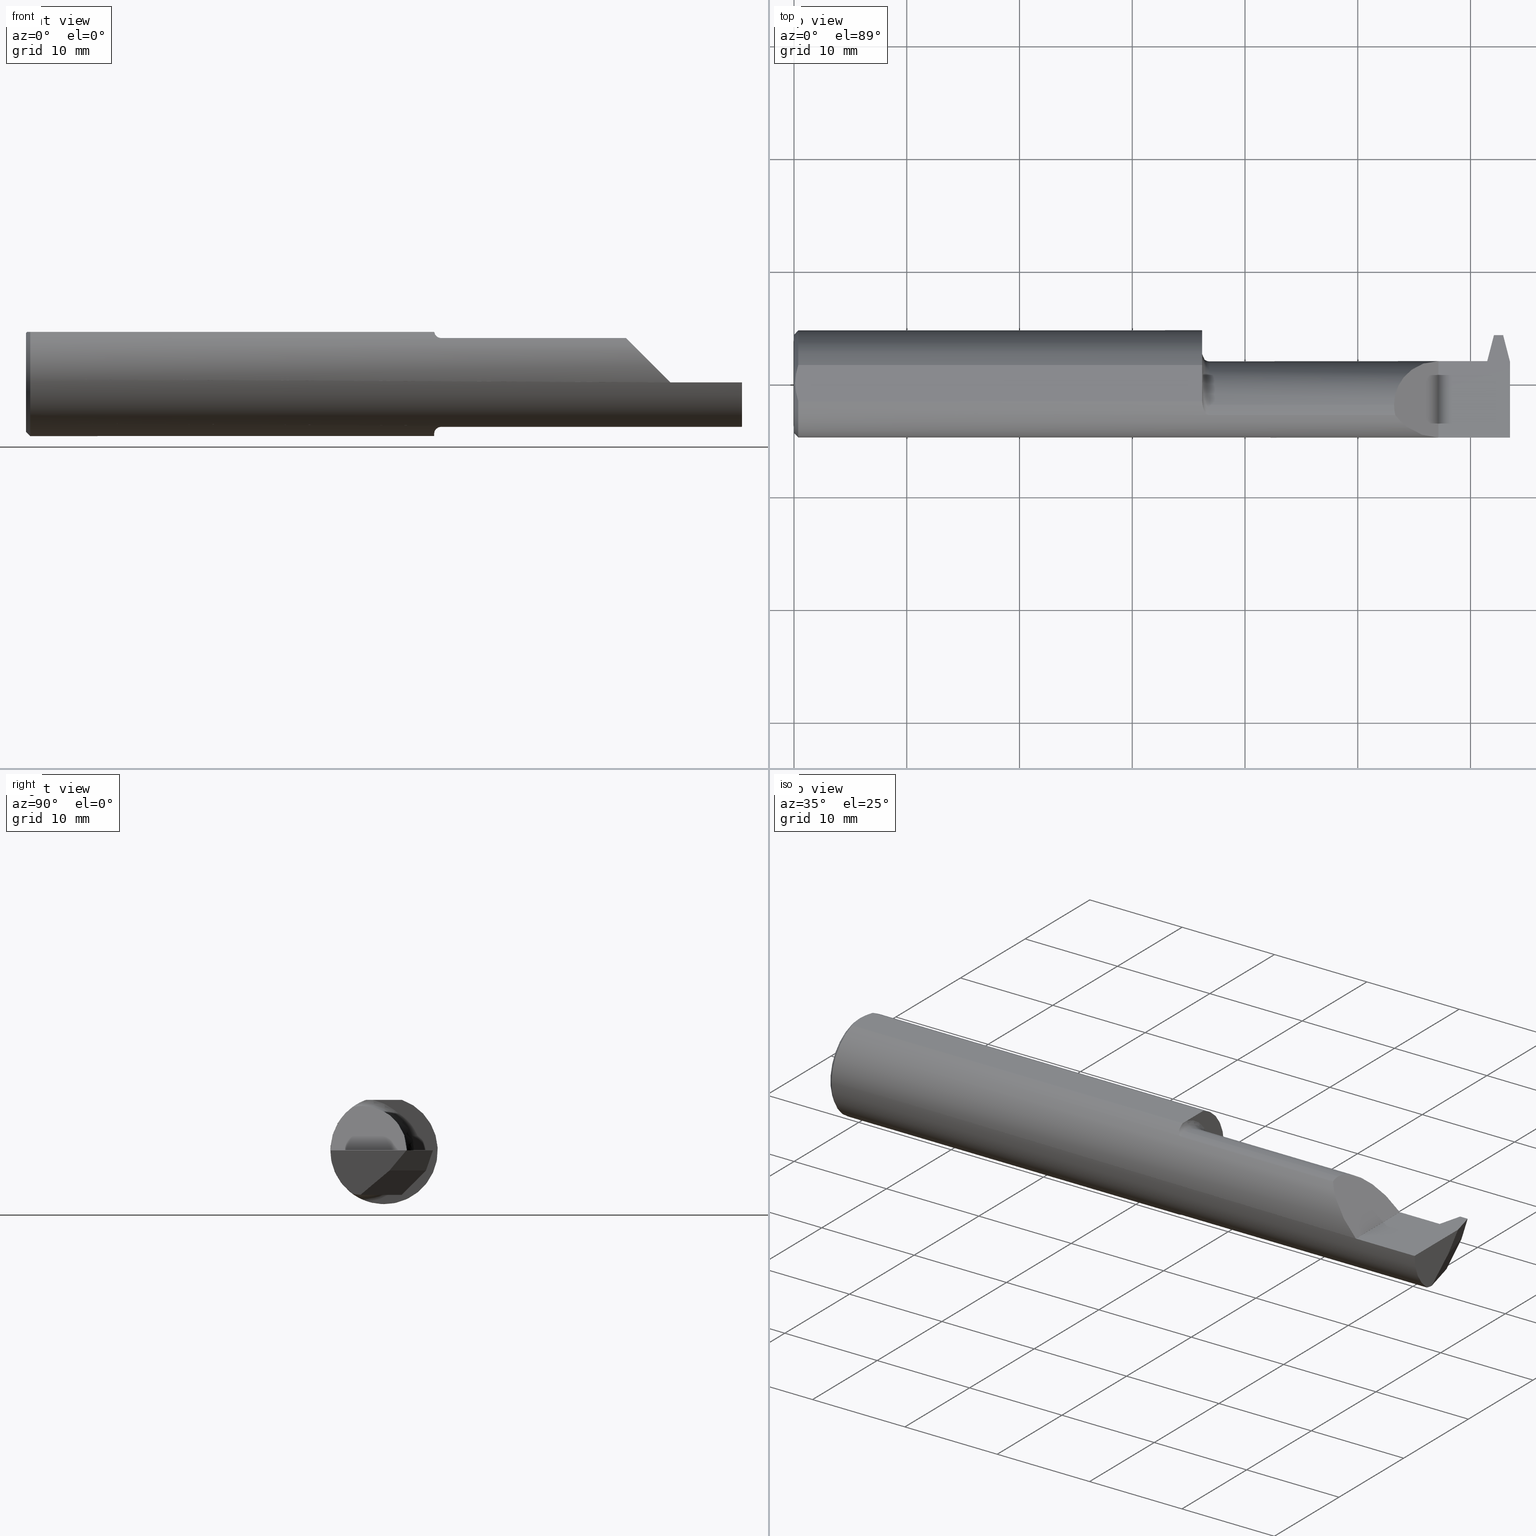
[diagram: canonical four-view strip — front | top / right | iso, engineering-drawing reading convention]
A machine part, canonical four-view strip (front | top / right | iso — engineering-drawing reading convention). The complete STEP part file that produces these views, byte-faithful:
ISO-10303-21;
HEADER;
FILE_DESCRIPTION (( 'STEP AP203' ),
    '1' );
FILE_NAME ('231027-FAT3601000-10.STEP',
    '2024-05-23T22:16:48',
    ( '' ),
    ( '' ),
    'SwSTEP 2.0',
    'SolidWorks 2022',
    '' );
FILE_SCHEMA (( 'CONFIG_CONTROL_DESIGN' ));
ENDSEC;

DATA;
#1 = EDGE_CURVE ( 'NONE', #154, #468, #128, .T. ) ;
#2 = EDGE_CURVE ( 'NONE', #398, #850, #961, .T. ) ;
#3 = VERTEX_POINT ( 'NONE', #661 ) ;
#4 = CARTESIAN_POINT ( 'NONE',  ( 2.416847974081296702, -0.07535000000000005582, 0.000000000000000000 ) ) ;
#5 = CARTESIAN_POINT ( 'NONE',  ( 2.475314547023544254, 0.1733004499999999115, 0.000000000000000000 ) ) ;
#6 = ORIENTED_EDGE ( 'NONE', *, *, #817, .F. ) ;
#7 = ORIENTED_EDGE ( 'NONE', *, *, #13, .T. ) ;
#8 = ADVANCED_FACE ( 'NONE', ( #949 ), #673, .F. ) ;
#9 = CARTESIAN_POINT ( 'NONE',  ( 2.410465799823614752, 0.07964999999999992919, 0.000000000000000000 ) ) ;
#10 = EDGE_CURVE ( 'NONE', #386, #543, #643, .T. ) ;
#11 = CARTESIAN_POINT ( 'NONE',  ( 1.447840824787754999, -0.1111655275381552566, 0.1508053314281813939 ) ) ;
#12 = CARTESIAN_POINT ( 'NONE',  ( 1.425000000000000266, 0.06325108694718213631, 0.1763499999999999790 ) ) ;
#13 = EDGE_CURVE ( 'NONE', #883, #74, #133, .T. ) ;
#14 = EDGE_LOOP ( 'NONE', ( #103, #212 ) ) ;
#15 = EDGE_LOOP ( 'NONE', ( #478, #164, #891, #99, #630, #54, #670, #855, #622, #92, #739, #633, #674, #884, #693 ) ) ;
#16 = CARTESIAN_POINT ( 'NONE',  ( 1.450000000000000178, -0.07535000000000005582, 0.000000000000000000 ) ) ;
#17 = VECTOR ( 'NONE', #569, 39.37007874015748143 ) ;
#18 = VERTEX_POINT ( 'NONE', #585 ) ;
#19 = VECTOR ( 'NONE', #553, 39.37007874015748854 ) ;
#20 = FACE_OUTER_BOUND ( 'NONE', #91, .T. ) ;
#21 = ORIENTED_EDGE ( 'NONE', *, *, #466, .T. ) ;
#22 = VECTOR ( 'NONE', #897, 39.37007874015748143 ) ;
#23 = DIRECTION ( 'NONE',  ( 0.000000000000000000, 0.000000000000000000, -1.000000000000000000 ) ) ;
#24 = DIRECTION ( 'NONE',  ( 0.000000000000000000, 0.000000000000000000, -1.000000000000000000 ) ) ;
#25 = VECTOR ( 'NONE', #313, 39.37007874015748143 ) ;
#26 = CARTESIAN_POINT ( 'NONE',  ( 2.459999999999999964, 0.1738055255122913922, -0.06999999999999920175 ) ) ;
#27 = CIRCLE ( 'NONE', #593, 0.1549999999999999989 ) ;
#28 = ORIENTED_EDGE ( 'NONE', *, *, #10, .F. ) ;
#29 = PERSON_AND_ORGANIZATION ( #221, #629 ) ;
#30 = DIRECTION ( 'NONE',  ( 0.000000000000000000, 0.000000000000000000, -1.000000000000000000 ) ) ;
#31 = DIRECTION ( 'NONE',  ( -1.000000000000000000, -0.000000000000000000, -0.000000000000000000 ) ) ;
#32 = CARTESIAN_POINT ( 'NONE',  ( 2.443999999999999506, 0.1706500000000004402, 0.000000000000000000 ) ) ;
#33 = SHAPE_DEFINITION_REPRESENTATION ( #964, #272 ) ;
#34 = EDGE_CURVE ( 'NONE', #846, #905, #740, .T. ) ;
#35 = B_SPLINE_CURVE_WITH_KNOTS ( 'NONE', 3,
 ( #342, #273, #401, #729, #41, #187, #494, #346, #116, #644, #941, #873 ),
 .UNSPECIFIED., .F., .F.,
 ( 4, 2, 2, 2, 2, 4 ),
 ( 0.0005353161947638540065, 0.0008532056447682662310, 0.001171095094772678456, 0.001488984544777090680, 0.001647929269779296792, 0.001806873994781502905 ),
 .UNSPECIFIED. ) ;
#36 = CARTESIAN_POINT ( 'NONE',  ( 1.425000000000000266, 0.000000000000000000, 0.000000000000000000 ) ) ;
#37 = CARTESIAN_POINT ( 'NONE',  ( 2.500000000000000000, -0.07534999999999998643, -0.1549999999999999156 ) ) ;
#38 = EDGE_CURVE ( 'NONE', #256, #850, #234, .T. ) ;
#39 = FACE_OUTER_BOUND ( 'NONE', #15, .T. ) ;
#40 = CALENDAR_DATE ( 2024, 23, 5 ) ;
#41 = CARTESIAN_POINT ( 'NONE',  ( 1.431244079504313538, -0.09361870253556393850, -0.1623293170049111833 ) ) ;
#42 = CARTESIAN_POINT ( 'NONE',  ( 2.419999999999999929, -0.02721703491516649920, -0.1473370885830929677 ) ) ;
#43 = VECTOR ( 'NONE', #454, 39.37007874015748143 ) ;
#44 = PERSON_AND_ORGANIZATION ( #221, #629 ) ;
#45 = CARTESIAN_POINT ( 'NONE',  ( 2.420465799823614539, 0.07964999999999992919, 0.000000000000000000 ) ) ;
#46 = DIRECTION ( 'NONE',  ( -0.2503800040544423844, 0.9681476403781074103, -5.540024868260867537E-16 ) ) ;
#47 = ORIENTED_EDGE ( 'NONE', *, *, #646, .F. ) ;
#48 = EDGE_LOOP ( 'NONE', ( #842, #612 ) ) ;
#49 = APPROVAL_DATE_TIME ( #130, #548 ) ;
#50 = CARTESIAN_POINT ( 'NONE',  ( 0.01500000000000079568, 0.000000000000000000, 0.000000000000000000 ) ) ;
#51 = AXIS2_PLACEMENT_3D ( 'NONE', #813, #166, #73 ) ;
#52 = FACE_OUTER_BOUND ( 'NONE', #183, .T. ) ;
#53 = ORIENTED_EDGE ( 'NONE', *, *, #118, .F. ) ;
#54 = ORIENTED_EDGE ( 'NONE', *, *, #215, .F. ) ;
#55 = ORIENTED_EDGE ( 'NONE', *, *, #900, .T. ) ;
#56 = EDGE_CURVE ( 'NONE', #393, #908, #337, .T. ) ;
#57 = CARTESIAN_POINT ( 'NONE',  ( 2.250000000000000000, 0.000000000000000000, 0.000000000000000000 ) ) ;
#58 = CARTESIAN_POINT ( 'NONE',  ( 2.420465799823614539, 0.07964999999999992919, 0.000000000000000000 ) ) ;
#59 = ORIENTED_EDGE ( 'NONE', *, *, #34, .T. ) ;
#60 = DIRECTION ( 'NONE',  ( -0.1200238624775790408, 0.3232146245633335524, 0.9386834284807347162 ) ) ;
#61 = CARTESIAN_POINT ( 'NONE',  ( 2.500000000000000000, -0.03634933712599664607, -0.1549999999999999434 ) ) ;
#62 = ORIENTED_EDGE ( 'NONE', *, *, #926, .T. ) ;
#63 = MANIFOLD_SOLID_BREP ( 'Cut-Sweep1', #717 ) ;
#64 = CIRCLE ( 'NONE', #199, 0.1873499999999999888 ) ;
#65 = LINE ( 'NONE', #554, #455 ) ;
#66 = FACE_OUTER_BOUND ( 'NONE', #248, .T. ) ;
#67 = CARTESIAN_POINT ( 'NONE',  ( 2.095349999999999380, -0.07535000000000005582, 0.1549999999999999989 ) ) ;
#68 = AXIS2_PLACEMENT_3D ( 'NONE', #189, #935, #822 ) ;
#69 = CIRCLE ( 'NONE', #286, 0.1873499999999999888 ) ;
#70 = AXIS2_PLACEMENT_3D ( 'NONE', #840, #848, #982 ) ;
#71 = CARTESIAN_POINT ( 'NONE',  ( 2.399999999999999911, 0.2165470670697226818, 0.000000000000000000 ) ) ;
#72 = CC_DESIGN_PERSON_AND_ORGANIZATION_ASSIGNMENT ( #649, #107, ( #606 ) ) ;
#73 = DIRECTION ( 'NONE',  ( 0.000000000000000000, 0.000000000000000000, -1.000000000000000000 ) ) ;
#74 = VERTEX_POINT ( 'NONE', #314 ) ;
#75 = DIMENSIONAL_EXPONENTS ( 1.000000000000000000, 0.000000000000000000, 0.000000000000000000, 0.000000000000000000, 0.000000000000000000, 0.000000000000000000, 0.000000000000000000 ) ;
#76 = SECURITY_CLASSIFICATION ( '', '', #796 ) ;
#77 = DIRECTION ( 'NONE',  ( 0.000000000000000000, -0.7071067811865515695, 0.7071067811865434649 ) ) ;
#78 = FACE_OUTER_BOUND ( 'NONE', #81, .T. ) ;
#79 = EDGE_CURVE ( 'NONE', #955, #260, #609, .T. ) ;
#80 = EDGE_CURVE ( 'NONE', #179, #375, #160, .T. ) ;
#81 = EDGE_LOOP ( 'NONE', ( #586, #289, #549, #567 ) ) ;
#82 = CARTESIAN_POINT ( 'NONE',  ( 0.004000000000000698309, 2.159664630174422375E-17, 0.1763499999999999790 ) ) ;
#83 = CARTESIAN_POINT ( 'NONE',  ( 2.451219831960825157, 0.1039189971471759233, -0.1938009043633889261 ) ) ;
#84 = ORIENTED_EDGE ( 'NONE', *, *, #580, .F. ) ;
#85 = EDGE_CURVE ( 'NONE', #370, #316, #27, .T. ) ;
#86 = APPROVAL ( #879, 'UNSPECIFIED' ) ;
#87 = VERTEX_POINT ( 'NONE', #830 ) ;
#88 = ADVANCED_FACE ( 'NONE', ( #683 ), #618, .T. ) ;
#89 = DIRECTION ( 'NONE',  ( 0.000000000000000000, 0.000000000000000000, -1.000000000000000000 ) ) ;
#90 = DIRECTION ( 'NONE',  ( 1.000000000000000000, 0.000000000000000000, 0.000000000000000000 ) ) ;
#91 = EDGE_LOOP ( 'NONE', ( #972, #852, #174, #442, #518, #705 ) ) ;
#92 = ORIENTED_EDGE ( 'NONE', *, *, #195, .T. ) ;
#93 = PERSON_AND_ORGANIZATION_ROLE ( 'design_owner' ) ;
#94 = CC_DESIGN_APPROVAL ( #86, ( #76 ) ) ;
#95 = CARTESIAN_POINT ( 'NONE',  ( 2.420465799823614539, 0.07964999999999992919, 0.000000000000000000 ) ) ;
#96 = ORIENTED_EDGE ( 'NONE', *, *, #792, .F. ) ;
#97 = CARTESIAN_POINT ( 'NONE',  ( 2.410128569999999470, 0.1055363691085695749, -0.1891037151198635968 ) ) ;
#98 =( BOUNDED_CURVE ( )  B_SPLINE_CURVE ( 3, ( #695, #977, #843, #906 ),
 .UNSPECIFIED., .F., .T. ) 
 B_SPLINE_CURVE_WITH_KNOTS ( ( 4, 4 ),
 ( 4.714647046819741227, 6.283185307179586232 ),
 .UNSPECIFIED. ) 
 CURVE ( )  GEOMETRIC_REPRESENTATION_ITEM ( )  RATIONAL_B_SPLINE_CURVE ( ( 1.000000000000000000, 0.8052697849207437475, 0.8052697849207437475, 1.000000000000000000 ) ) 
 REPRESENTATION_ITEM ( '' )  );
#99 = ORIENTED_EDGE ( 'NONE', *, *, #539, .T. ) ;
#100 = DIRECTION ( 'NONE',  ( -1.000000000000000000, -0.000000000000000000, -0.000000000000000000 ) ) ;
#101 = ADVANCED_FACE ( 'NONE', ( #66 ), #470, .T. ) ;
#102 = FACE_OUTER_BOUND ( 'NONE', #288, .T. ) ;
#103 = ORIENTED_EDGE ( 'NONE', *, *, #1, .T. ) ;
#104 = PLANE ( 'NONE',  #68 ) ;
#105 = ORIENTED_EDGE ( 'NONE', *, *, #475, .F. ) ;
#106 = CIRCLE ( 'NONE', #410, 0.1549999999999999989 ) ;
#107 = PERSON_AND_ORGANIZATION_ROLE ( 'creator' ) ;
#108 = DIRECTION ( 'NONE',  ( -1.000000000000000000, -0.000000000000000000, -0.000000000000000000 ) ) ;
#109 = B_SPLINE_CURVE_WITH_KNOTS ( 'NONE', 3,
 ( #978, #157, #238, #767 ),
 .UNSPECIFIED., .F., .F.,
 ( 4, 4 ),
 ( 0.000000000000000000, 0.0005353161947638540065 ),
 .UNSPECIFIED. ) ;
#110 = CARTESIAN_POINT ( 'NONE',  ( 2.498238283139456506, -0.07535000000000000031, -0.1549999999999999156 ) ) ;
#111 = AXIS2_PLACEMENT_3D ( 'NONE', #827, #274, #296 ) ;
#112 = EDGE_LOOP ( 'NONE', ( #315, #462, #820, #389, #362, #863, #356, #532 ) ) ;
#113 = CYLINDRICAL_SURFACE ( 'NONE', #332, 0.1873499999999999888 ) ;
#114 = PERSON_AND_ORGANIZATION ( #221, #629 ) ;
#115 = UNCERTAINTY_MEASURE_WITH_UNIT (LENGTH_MEASURE( 1.000000000000000082E-05 ), #321, 'distance_accuracy_value', 'NONE');
#116 = CARTESIAN_POINT ( 'NONE',  ( 1.442175898121774713, -0.1087238381091982370, -0.1525793326322721077 ) ) ;
#117 = DIRECTION ( 'NONE',  ( 0.000000000000000000, 0.000000000000000000, -1.000000000000000000 ) ) ;
#118 = EDGE_CURVE ( 'NONE', #439, #467, #542, .T. ) ;
#119 = EDGE_CURVE ( 'NONE', #955, #355, #911, .T. ) ;
#120 = DIRECTION ( 'NONE',  ( 0.000000000000000000, 0.000000000000000000, -1.000000000000000000 ) ) ;
#121 = CARTESIAN_POINT ( 'NONE',  ( 1.450000000000000178, -0.1111655275381552427, 0.1508053314281814494 ) ) ;
#122 = LINE ( 'NONE', #499, #931 ) ;
#123 = CONICAL_SURFACE ( 'NONE', #708, 0.1873499999999999888, 0.7853981633974437271 ) ;
#124 = ADVANCED_FACE ( 'NONE', ( #307 ), #448, .F. ) ;
#125 = APPROVAL_ROLE ( '' ) ;
#126 = CARTESIAN_POINT ( 'NONE',  ( 1.425000000000000266, -0.02721703491516655818, -0.1473370885830930233 ) ) ;
#127 = AXIS2_PLACEMENT_3D ( 'NONE', #750, #894, #360 ) ;
#128 = LINE ( 'NONE', #369, #841 ) ;
#129 = CIRCLE ( 'NONE', #685, 0.1873499999999999888 ) ;
#130 = DATE_AND_TIME ( #40, #621 ) ;
#131 = CARTESIAN_POINT ( 'NONE',  ( 2.416847974081296702, 0.06494971824451248321, -0.06999999999999920175 ) ) ;
#132 = CARTESIAN_POINT ( 'NONE',  ( 2.431847974081296826, 0.06494971824451248321, -0.06999999999999920175 ) ) ;
#133 = LINE ( 'NONE', #217, #671 ) ;
#134 = ORIENTED_EDGE ( 'NONE', *, *, #682, .F. ) ;
#135 = DIRECTION ( 'NONE',  ( 0.000000000000000000, 0.6427876096865379196, -0.7660444431189792347 ) ) ;
#136 = CARTESIAN_POINT ( 'NONE',  ( 1.425439896557285868, -0.06737885671737320337, 0.1748695014197203801 ) ) ;
#137 = ORIENTED_EDGE ( 'NONE', *, *, #215, .T. ) ;
#138 = ORIENTED_EDGE ( 'NONE', *, *, #56, .F. ) ;
#139 = CARTESIAN_POINT ( 'NONE',  ( 2.500000000000000000, 0.000000000000000000, 0.000000000000000000 ) ) ;
#140 = ORIENTED_EDGE ( 'NONE', *, *, #193, .F. ) ;
#141 = ORIENTED_EDGE ( 'NONE', *, *, #926, .F. ) ;
#142 = DIRECTION ( 'NONE',  ( -1.000000000000000000, -0.000000000000000000, -0.000000000000000000 ) ) ;
#143 = EDGE_LOOP ( 'NONE', ( #391, #59, #642 ) ) ;
#144 = DIRECTION ( 'NONE',  ( -0.000000000000000000, 0.000000000000000000, -1.000000000000000000 ) ) ;
#145 = DIRECTION ( 'NONE',  ( 0.000000000000000000, 0.000000000000000000, 1.000000000000000000 ) ) ;
#146 = DIRECTION ( 'NONE',  ( 0.000000000000000000, 0.000000000000000000, -1.000000000000000000 ) ) ;
#147 = TOROIDAL_SURFACE ( 'NONE', #326, 0.1799999999999999933, 0.02500000000000000139 ) ;
#148 = AXIS2_PLACEMENT_3D ( 'NONE', #937, #757, #257 ) ;
#149 = LINE ( 'NONE', #769, #25 ) ;
#150 = CARTESIAN_POINT ( 'NONE',  ( 2.419999999999999929, -0.07535000000000005582, 0.000000000000000000 ) ) ;
#151 = VECTOR ( 'NONE', #60, 39.37007874015748854 ) ;
#152 = EDGE_CURVE ( 'NONE', #3, #543, #857, .T. ) ;
#153 = CIRCLE ( 'NONE', #808, 0.02500000000000000486 ) ;
#154 = VERTEX_POINT ( 'NONE', #225 ) ;
#155 = EDGE_CURVE ( 'NONE', #467, #179, #311, .T. ) ;
#156 = CARTESIAN_POINT ( 'NONE',  ( 1.431253303781169661, -0.09363708362384966233, 0.1623181733163006346 ) ) ;
#157 = CARTESIAN_POINT ( 'NONE',  ( 1.425000000000000266, -0.06239895713696063523, -0.1767970804181337729 ) ) ;
#158 = ORIENTED_EDGE ( 'NONE', *, *, #438, .F. ) ;
#159 = DIRECTION ( 'NONE',  ( 0.000000000000000000, 1.000000000000000000, -1.224646799147353207E-16 ) ) ;
#160 = LINE ( 'NONE', #61, #43 ) ;
#161 = EDGE_CURVE ( 'NONE', #162, #543, #761, .T. ) ;
#162 = VERTEX_POINT ( 'NONE', #919 ) ;
#163 = EDGE_CURVE ( 'NONE', #905, #908, #109, .T. ) ;
#164 = ORIENTED_EDGE ( 'NONE', *, *, #533, .F. ) ;
#165 = CARTESIAN_POINT ( 'NONE',  ( 2.431847974081296826, 0.06494971824451248321, -0.06999999999999920175 ) ) ;
#166 = DIRECTION ( 'NONE',  ( -1.000000000000000000, -0.000000000000000000, -0.000000000000000000 ) ) ;
#167 = ORIENTED_EDGE ( 'NONE', *, *, #539, .F. ) ;
#168 = ORIENTED_EDGE ( 'NONE', *, *, #339, .T. ) ;
#169 = DIRECTION ( 'NONE',  ( 1.000000000000000000, 0.000000000000000000, 0.000000000000000000 ) ) ;
#170 = DIRECTION ( 'NONE',  ( 0.000000000000000000, 0.000000000000000000, -1.000000000000000000 ) ) ;
#171 = AXIS2_PLACEMENT_3D ( 'NONE', #379, #975, #230 ) ;
#172 = ORIENTED_EDGE ( 'NONE', *, *, #892, .F. ) ;
#173 = CARTESIAN_POINT ( 'NONE',  ( 0.000000000000000000, 0.000000000000000000, 0.000000000000000000 ) ) ;
#174 = ORIENTED_EDGE ( 'NONE', *, *, #188, .T. ) ;
#175 = CARTESIAN_POINT ( 'NONE',  ( 0.01500000000000079568, 0.000000000000000000, 0.000000000000000000 ) ) ;
#176 = PLANE ( 'NONE',  #381 ) ;
#177 = ORIENTED_EDGE ( 'NONE', *, *, #443, .T. ) ;
#178 = CARTESIAN_POINT ( 'NONE',  ( 2.099544668571818207, -0.1111655275381547570, 0.1508053314281816715 ) ) ;
#179 = VERTEX_POINT ( 'NONE', #461 ) ;
#180 = CARTESIAN_POINT ( 'NONE',  ( 1.425000000000000266, -0.05559153948241538773, -0.1789122780526117285 ) ) ;
#181 = DIRECTION ( 'NONE',  ( 0.000000000000000000, -0.9786527043120508695, 0.2055210070593990190 ) ) ;
#182 = CARTESIAN_POINT ( 'NONE',  ( 2.419999999999999929, -0.07534999999999998643, -0.1549999999999999156 ) ) ;
#183 = EDGE_LOOP ( 'NONE', ( #138, #656, #441 ) ) ;
#184 = CARTESIAN_POINT ( 'NONE',  ( 1.425000000000000266, -0.04727406520530673395, 0.1763499999999999790 ) ) ;
#185 = COORDINATED_UNIVERSAL_TIME_OFFSET ( 8, 0, .BEHIND. ) ;
#186 = ADVANCED_FACE ( 'NONE', ( #78 ), #388, .F. ) ;
#187 = CARTESIAN_POINT ( 'NONE',  ( 1.434565425567610131, -0.1003007981862104464, -0.1582877711856871539 ) ) ;
#188 = EDGE_CURVE ( 'NONE', #316, #375, #299, .T. ) ;
#189 = CARTESIAN_POINT ( 'NONE',  ( 2.500000000000000000, 0.1052379327999176384, -0.1550000000000000266 ) ) ;
#190 = CARTESIAN_POINT ( 'NONE',  ( 2.500000000000000000, 0.000000000000000000, 0.000000000000000000 ) ) ;
#191 = PLANE ( 'NONE',  #877 ) ;
#192 = LOCAL_TIME ( 15, 16, 48.00000000000000000, #653 ) ;
#193 = EDGE_CURVE ( 'NONE', #355, #439, #592, .T. ) ;
#194 = DIRECTION ( 'NONE',  ( -1.552304856221516553E-14, -0.9455185755993168462, 0.3255681544571566999 ) ) ;
#195 = EDGE_CURVE ( 'NONE', #915, #481, #129, .T. ) ;
#196 = DIRECTION ( 'NONE',  ( 0.000000000000000000, 0.000000000000000000, -1.000000000000000000 ) ) ;
#197 = CIRCLE ( 'NONE', #753, 0.1873499999999999888 ) ;
#198 = CARTESIAN_POINT ( 'NONE',  ( 2.498811112660294320, -0.07756496740936762169, -0.1550000000000000266 ) ) ;
#199 = AXIS2_PLACEMENT_3D ( 'NONE', #50, #733, #196 ) ;
#200 = AXIS2_PLACEMENT_3D ( 'NONE', #173, #490, #479 ) ;
#201 = PERSON_AND_ORGANIZATION_ROLE ( 'classification_officer' ) ;
#202 = CARTESIAN_POINT ( 'NONE',  ( 2.470434268414138046, 0.2148006194178429529, -0.001746447651879760822 ) ) ;
#203 = AXIS2_PLACEMENT_3D ( 'NONE', #165, #463, #224 ) ;
#204 = CARTESIAN_POINT ( 'NONE',  ( 0.008079618022130599653, 0.04275288484297749825, 0.1763499999999999790 ) ) ;
#205 = ORIENTED_EDGE ( 'NONE', *, *, #823, .T. ) ;
#206 = ORIENTED_EDGE ( 'NONE', *, *, #367, .T. ) ;
#207 = AXIS2_PLACEMENT_3D ( 'NONE', #373, #536, #145 ) ;
#208 = APPROVAL_STATUS ( 'not_yet_approved' ) ;
#209 = CARTESIAN_POINT ( 'NONE',  ( 1.426478687487613639, -0.07534999999999991704, 0.1715295892841814940 ) ) ;
#210 = CARTESIAN_POINT ( 'NONE',  ( 2.189466948591779705, -0.1872365873764759991, 0.06088305140821962530 ) ) ;
#211 = ORIENTED_EDGE ( 'NONE', *, *, #152, .T. ) ;
#212 = ORIENTED_EDGE ( 'NONE', *, *, #611, .F. ) ;
#213 = LINE ( 'NONE', #965, #301 ) ;
#214 = ORIENTED_EDGE ( 'NONE', *, *, #366, .T. ) ;
#215 = EDGE_CURVE ( 'NONE', #702, #319, #872, .T. ) ;
#216 = LINE ( 'NONE', #734, #510 ) ;
#217 = CARTESIAN_POINT ( 'NONE',  ( 2.419999999999999929, 0.1080444690466985241, -0.03383921049620826349 ) ) ;
#218 = CARTESIAN_POINT ( 'NONE',  ( 0.000000000000000000, 0.000000000000000000, -0.1723499999999993371 ) ) ;
#219 = DIRECTION ( 'NONE',  ( -1.000000000000000000, 1.641749719446377136E-14, 0.000000000000000000 ) ) ;
#220 = ORIENTED_EDGE ( 'NONE', *, *, #347, .F. ) ;
#221 = PERSON ( 'UNSPECIFIED', 'UNSPECIFIED', 'UNSPECIFIED', ('UNSPECIFIED'), ('UNSPECIFIED'), ('UNSPECIFIED') ) ;
#222 = ADVANCED_FACE ( 'NONE', ( #39 ), #113, .T. ) ;
#223 = EDGE_CURVE ( 'NONE', #883, #256, #925, .T. ) ;
#224 = DIRECTION ( 'NONE',  ( -0.2945363905204703703, 0.000000000000000000, 0.9556402642517595192 ) ) ;
#225 = CARTESIAN_POINT ( 'NONE',  ( 2.416847974081296702, 0.06139050547018883031, -0.07298653412621564085 ) ) ;
#226 = ORIENTED_EDGE ( 'NONE', *, *, #161, .T. ) ;
#227 = AXIS2_PLACEMENT_3D ( 'NONE', #131, #135, #426 ) ;
#228 = ORIENTED_EDGE ( 'NONE', *, *, #262, .T. ) ;
#229 = DIRECTION ( 'NONE',  ( 0.2503800040544299499, 0.9681476403781106299, -0.000000000000000000 ) ) ;
#230 = DIRECTION ( 'NONE',  ( -0.000000000000000000, 0.000000000000000000, 1.000000000000000000 ) ) ;
#231 = AXIS2_PLACEMENT_3D ( 'NONE', #97, #194, #423 ) ;
#232 = ORIENTED_EDGE ( 'NONE', *, *, #817, .T. ) ;
#233 = CARTESIAN_POINT ( 'NONE',  ( 1.450000000000000178, -0.07535000000000005582, 0.1549999999999999989 ) ) ;
#234 = LINE ( 'NONE', #318, #457 ) ;
#235 = ORIENTED_EDGE ( 'NONE', *, *, #293, .F. ) ;
#236 = EDGE_LOOP ( 'NONE', ( #158, #744, #779, #253, #206, #491 ) ) ;
#237 = LINE ( 'NONE', #700, #558 ) ;
#238 = CARTESIAN_POINT ( 'NONE',  ( 1.425471628390130308, -0.06898398245409141649, -0.1743260713610383095 ) ) ;
#239 = VERTEX_POINT ( 'NONE', #12 ) ;
#240 = EDGE_LOOP ( 'NONE', ( #351, #666, #168, #226, #28 ) ) ;
#241 = CARTESIAN_POINT ( 'NONE',  ( 2.500000000000000000, -0.06325108694718213631, 0.1763499999999999790 ) ) ;
#242 = AXIS2_PLACEMENT_3D ( 'NONE', #250, #922, #638 ) ;
#243 = DIRECTION ( 'NONE',  ( 0.000000000000000000, -0.7660444431189792347, -0.6427876096865379196 ) ) ;
#244 = DIRECTION ( 'NONE',  ( -1.000000000000000000, -0.000000000000000000, -0.000000000000000000 ) ) ;
#245 = ORIENTED_EDGE ( 'NONE', *, *, #13, .F. ) ;
#246 = FACE_OUTER_BOUND ( 'NONE', #912, .T. ) ;
#247 = AXIS2_PLACEMENT_3D ( 'NONE', #944, #266, #574 ) ;
#248 = EDGE_LOOP ( 'NONE', ( #934, #7, #6 ) ) ;
#249 = AXIS2_PLACEMENT_3D ( 'NONE', #541, #408, #498 ) ;
#250 = CARTESIAN_POINT ( 'NONE',  ( 2.419999999999999929, 0.07964999999999992919, 0.000000000000000000 ) ) ;
#251 = FACE_OUTER_BOUND ( 'NONE', #14, .T. ) ;
#252 = VECTOR ( 'NONE', #90, 39.37007874015748143 ) ;
#253 = ORIENTED_EDGE ( 'NONE', *, *, #152, .F. ) ;
#254 = PLANE ( 'NONE',  #231 ) ;
#255 = APPROVAL ( #208, 'UNSPECIFIED' ) ;
#256 = VERTEX_POINT ( 'NONE', #323 ) ;
#257 = DIRECTION ( 'NONE',  ( 0.000000000000000000, 0.000000000000000000, -1.000000000000000000 ) ) ;
#258 = DIRECTION ( 'NONE',  ( -1.000000000000000000, -0.000000000000000000, -0.000000000000000000 ) ) ;
#259 = DIRECTION ( 'NONE',  ( 0.000000000000000000, -0.7660444431189792347, -0.6427876096865379196 ) ) ;
#261 = EDGE_CURVE ( 'NONE', #428, #722, #534, .T. ) ;
#260 = VERTEX_POINT ( 'NONE', #32 ) ;
#262 = EDGE_CURVE ( 'NONE', #411, #846, #477, .T. ) ;
#263 = DATE_AND_TIME ( #809, #497 ) ;
#264 = DIRECTION ( 'NONE',  ( 0.000000000000000000, 0.000000000000000000, 1.000000000000000000 ) ) ;
#265 = CARTESIAN_POINT ( 'NONE',  ( 2.410465799823614752, 0.07964999999999992919, 0.000000000000000000 ) ) ;
#266 = DIRECTION ( 'NONE',  ( 1.000000000000000000, 0.000000000000000000, 0.000000000000000000 ) ) ;
#267 = APPROVAL_ROLE ( '' ) ;
#268 = FACE_OUTER_BOUND ( 'NONE', #748, .T. ) ;
#269 = EDGE_CURVE ( 'NONE', #239, #846, #416, .T. ) ;
#270 = LINE ( 'NONE', #26, #668 ) ;
#271 = ADVANCED_FACE ( 'NONE', ( #652 ), #344, .T. ) ;
#272 = ADVANCED_BREP_SHAPE_REPRESENTATION ( '231027-FAT3601000-10', ( #63, #503 ), #804 ) ;
#273 = CARTESIAN_POINT ( 'NONE',  ( 1.427076714346777742, -0.07913036352372353199, -0.1698689405721950929 ) ) ;
#274 = DIRECTION ( 'NONE',  ( -0.000000000000000000, 0.000000000000000000, -1.000000000000000000 ) ) ;
#275 = DATE_AND_TIME ( #430, #192 ) ;
#276 = CARTESIAN_POINT ( 'NONE',  ( 1.425000000000000266, 0.06139050547018883031, -0.07298653412621564085 ) ) ;
#277 =( BOUNDED_CURVE ( )  B_SPLINE_CURVE ( 3, ( #743, #210, #516, #440 ),
 .UNSPECIFIED., .F., .T. ) 
 B_SPLINE_CURVE_WITH_KNOTS ( ( 4, 4 ),
 ( 4.714257142666966161, 5.647961724597865718 ),
 .UNSPECIFIED. ) 
 CURVE ( )  GEOMETRIC_REPRESENTATION_ITEM ( )  RATIONAL_B_SPLINE_CURVE ( ( 1.000000000000000000, 0.9286596154903572486, 0.9286596154903572486, 1.000000000000000000 ) ) 
 REPRESENTATION_ITEM ( '' )  );
#278 = CIRCLE ( 'NONE', #501, 0.1549999999999999989 ) ;
#279 = CARTESIAN_POINT ( 'NONE',  ( 0.01500000000000079568, 0.06325108694718213631, 0.1763499999999999790 ) ) ;
#280 = DIRECTION ( 'NONE',  ( 0.000000000000000000, -0.7660444431189792347, -0.6427876096865379196 ) ) ;
#281 = ORIENTED_EDGE ( 'NONE', *, *, #876, .T. ) ;
#282 = CC_DESIGN_APPROVAL ( #255, ( #606 ) ) ;
#283 = AXIS2_PLACEMENT_3D ( 'NONE', #496, #728, #120 ) ;
#284 = CALENDAR_DATE ( 2024, 23, 5 ) ;
#285 = PLANE ( 'NONE',  #924 ) ;
#286 = AXIS2_PLACEMENT_3D ( 'NONE', #57, #298, #599 ) ;
#287 = DIRECTION ( 'NONE',  ( 0.2503800040544398309, 0.9681476403781081874, 0.000000000000000000 ) ) ;
#288 = EDGE_LOOP ( 'NONE', ( #814, #776, #679, #137 ) ) ;
#289 = ORIENTED_EDGE ( 'NONE', *, *, #119, .F. ) ;
#290 = CC_DESIGN_PERSON_AND_ORGANIZATION_ASSIGNMENT ( #731, #341, ( #950 ) ) ;
#291 = DIRECTION ( 'NONE',  ( -0.000000000000000000, 1.000000000000000000, -0.000000000000000000 ) ) ;
#292 = VERTEX_POINT ( 'NONE', #495 ) ;
#293 = EDGE_CURVE ( 'NONE', #256, #179, #798, .T. ) ;
#294 = DESIGN_CONTEXT ( 'detailed design', #765, 'design' ) ;
#295 = EDGE_CURVE ( 'NONE', #386, #316, #570, .T. ) ;
#296 = DIRECTION ( 'NONE',  ( -1.000000000000000000, 0.000000000000000000, 0.000000000000000000 ) ) ;
#297 = ADVANCED_FACE ( 'NONE', ( #419 ), #640, .T. ) ;
#298 = DIRECTION ( 'NONE',  ( -1.000000000000000000, -0.000000000000000000, -0.000000000000000000 ) ) ;
#299 = LINE ( 'NONE', #600, #637 ) ;
#300 = CARTESIAN_POINT ( 'NONE',  ( 2.250000000000000000, 0.07964999999999992919, -4.469813191451678053E-17 ) ) ;
#301 = VECTOR ( 'NONE', #519, 39.37007874015748143 ) ;
#302 = B_SPLINE_CURVE_WITH_KNOTS ( 'NONE', 3,
 ( #364, #826, #960, #665 ),
 .UNSPECIFIED., .F., .F.,
 ( 4, 4 ),
 ( 0.005496776235116787243, 0.007121625476792169465 ),
 .UNSPECIFIED. ) ;
#303 = EDGE_CURVE ( 'NONE', #969, #398, #122, .T. ) ;
#304 = EDGE_CURVE ( 'NONE', #602, #702, #106, .T. ) ;
#305 = AXIS2_PLACEMENT_3D ( 'NONE', #844, #755, #604 ) ;
#306 = CARTESIAN_POINT ( 'NONE',  ( 1.425000000000000266, -0.07535000000000005582, 0.1549999999999999989 ) ) ;
#307 = FACE_OUTER_BOUND ( 'NONE', #445, .T. ) ;
#308 = LENGTH_MEASURE_WITH_UNIT ( LENGTH_MEASURE( 0.02539999999999999897 ), #699 );
#309 = VERTEX_POINT ( 'NONE', #714 ) ;
#310 = CARTESIAN_POINT ( 'NONE',  ( 1.450000000000000178, -0.07535000000000002807, 0.1799999999999999933 ) ) ;
#311 = LINE ( 'NONE', #530, #762 ) ;
#312 = ORIENTED_EDGE ( 'NONE', *, *, #611, .T. ) ;
#313 = DIRECTION ( 'NONE',  ( 1.000000000000000000, 0.000000000000000000, 0.000000000000000000 ) ) ;
#314 = CARTESIAN_POINT ( 'NONE',  ( 2.419999999999999929, 0.06139050547018883031, -0.07298653412621564085 ) ) ;
#315 = ORIENTED_EDGE ( 'NONE', *, *, #79, .T. ) ;
#316 = VERTEX_POINT ( 'NONE', #182 ) ;
#317 = FACE_OUTER_BOUND ( 'NONE', #690, .T. ) ;
#318 = CARTESIAN_POINT ( 'NONE',  ( 2.420465799823614539, 0.07964999999999992919, 0.000000000000000000 ) ) ;
#319 = VERTEX_POINT ( 'NONE', #178 ) ;
#320 = ORIENTED_EDGE ( 'NONE', *, *, #303, .T. ) ;
#321 =( CONVERSION_BASED_UNIT ( 'INCH', #308 ) LENGTH_UNIT ( ) NAMED_UNIT ( #75 ) );
#322 = CARTESIAN_POINT ( 'NONE',  ( 0.004000000000000698309, 0.02174349820064850128, 0.1763499999999999790 ) ) ;
#323 = CARTESIAN_POINT ( 'NONE',  ( 2.431847974081296826, 0.06494971824451248321, -0.06999999999999920175 ) ) ;
#324 = ORIENTED_EDGE ( 'NONE', *, *, #304, .F. ) ;
#325 = ORIENTED_EDGE ( 'NONE', *, *, #261, .T. ) ;
#326 = AXIS2_PLACEMENT_3D ( 'NONE', #639, #576, #30 ) ;
#327 =( NAMED_UNIT ( * ) SI_UNIT ( $, .STERADIAN. ) SOLID_ANGLE_UNIT ( ) );
#328 = DIRECTION ( 'NONE',  ( -1.000000000000000000, 0.000000000000000000, -0.000000000000000000 ) ) ;
#329 = CC_DESIGN_PERSON_AND_ORGANIZATION_ASSIGNMENT ( #44, #201, ( #76 ) ) ;
#330 = EDGE_LOOP ( 'NONE', ( #47, #141, #735, #962, #520, #552, #105 ) ) ;
#331 = CARTESIAN_POINT ( 'NONE',  ( 2.500000000000000000, 0.000000000000000000, 0.000000000000000000 ) ) ;
#332 = AXIS2_PLACEMENT_3D ( 'NONE', #190, #244, #800 ) ;
#333 = ORIENTED_EDGE ( 'NONE', *, *, #38, .F. ) ;
#334 = AXIS2_PLACEMENT_3D ( 'NONE', #71, #77, #387 ) ;
#335 = CARTESIAN_POINT ( 'NONE',  ( 1.426478687487605646, -0.07534999999994895781, -0.1715295892842039482 ) ) ;
#336 = CYLINDRICAL_SURFACE ( 'NONE', #832, 0.1549999999999999989 ) ;
#337 = CIRCLE ( 'NONE', #70, 0.02500000000000000486 ) ;
#338 = CARTESIAN_POINT ( 'NONE',  ( 2.099544668571818207, -0.1111655275381547570, 0.1508053314281816715 ) ) ;
#339 = EDGE_CURVE ( 'NONE', #355, #162, #270, .T. ) ;
#340 = VERTEX_POINT ( 'NONE', #946 ) ;
#341 = PERSON_AND_ORGANIZATION_ROLE ( 'design_supplier' ) ;
#342 = CARTESIAN_POINT ( 'NONE',  ( 1.426478687487605646, -0.07534999999994895781, -0.1715295892842039482 ) ) ;
#343 = CARTESIAN_POINT ( 'NONE',  ( 1.450000000000000178, -0.07535000000000004194, -0.1549999999999999989 ) ) ;
#344 = PLANE ( 'NONE',  #247 ) ;
#345 = COORDINATED_UNIVERSAL_TIME_OFFSET ( 8, 0, .BEHIND. ) ;
#346 = CARTESIAN_POINT ( 'NONE',  ( 1.440623984237018762, -0.1074936703607914240, -0.1534529456673628667 ) ) ;
#347 = EDGE_CURVE ( 'NONE', #969, #398, #943, .T. ) ;
#348 = DIRECTION ( 'NONE',  ( 0.2013133534504512878, 0.2013133534504512878, 0.9586166425871539554 ) ) ;
#349 = CARTESIAN_POINT ( 'NONE',  ( 1.425138881465989549, -0.05526243373525235869, 0.1763499999999999790 ) ) ;
#350 = CARTESIAN_POINT ( 'NONE',  ( 2.250000000000000000, -0.07535000000000005582, 0.000000000000000000 ) ) ;
#351 = ORIENTED_EDGE ( 'NONE', *, *, #540, .T. ) ;
#352 = COORDINATED_UNIVERSAL_TIME_OFFSET ( 8, 0, .BEHIND. ) ;
#353 = CARTESIAN_POINT ( 'NONE',  ( 1.425000000000000266, 0.07964999999999992919, -4.469813191451678053E-17 ) ) ;
#354 = CARTESIAN_POINT ( 'NONE',  ( 2.500000000000000000, -0.08199235869078237704, -0.1548576090188111543 ) ) ;
#355 = VERTEX_POINT ( 'NONE', #939 ) ;
#356 = ORIENTED_EDGE ( 'NONE', *, *, #528, .T. ) ;
#357 = APPROVAL_STATUS ( 'not_yet_approved' ) ;
#358 = LINE ( 'NONE', #353, #928 ) ;
#359 = AXIS2_PLACEMENT_3D ( 'NONE', #16, #632, #24 ) ;
#360 = DIRECTION ( 'NONE',  ( 0.000000000000000000, 0.000000000000000000, -1.000000000000000000 ) ) ;
#361 = ORIENTED_EDGE ( 'NONE', *, *, #466, .F. ) ;
#362 = ORIENTED_EDGE ( 'NONE', *, *, #443, .F. ) ;
#363 = ADVANCED_FACE ( 'NONE', ( #645 ), #254, .F. ) ;
#364 = CARTESIAN_POINT ( 'NONE',  ( 0.004000000000000698309, 2.159664630174422375E-17, 0.1763499999999999790 ) ) ;
#365 = ORIENTED_EDGE ( 'NONE', *, *, #38, .T. ) ;
#366 = EDGE_CURVE ( 'NONE', #936, #319, #579, .T. ) ;
#367 = EDGE_CURVE ( 'NONE', #3, #559, #856, .T. ) ;
#368 = CARTESIAN_POINT ( 'NONE',  ( 1.425000000000000266, -0.07535000000000004194, -0.1549999999999999989 ) ) ;
#369 = CARTESIAN_POINT ( 'NONE',  ( 2.416847974081296702, 0.06494971824451248321, -0.06999999999999920175 ) ) ;
#370 = VERTEX_POINT ( 'NONE', #42 ) ;
#371 = CARTESIAN_POINT ( 'NONE',  ( 2.500000000000000000, 0.06325108694718213631, 0.1763499999999999790 ) ) ;
#372 = ADVANCED_FACE ( 'NONE', ( #246 ), #866, .F. ) ;
#373 = CARTESIAN_POINT ( 'NONE',  ( 1.425000000000000266, -0.07535000000000005582, 0.000000000000000000 ) ) ;
#374 = DIRECTION ( 'NONE',  ( 0.2055210070593990190, 0.000000000000000000, 0.9786527043120508695 ) ) ;
#375 = VERTEX_POINT ( 'NONE', #780 ) ;
#376 = VECTOR ( 'NONE', #904, 39.37007874015748143 ) ;
#377 = VECTOR ( 'NONE', #723, 39.37007874015748143 ) ;
#378 = PLANE ( 'NONE',  #203 ) ;
#379 = CARTESIAN_POINT ( 'NONE',  ( 2.419999999999999929, 0.07964999999999992919, 0.000000000000000000 ) ) ;
#380 = DIRECTION ( 'NONE',  ( -0.9786527043120508695, 0.000000000000000000, 0.2055210070593990190 ) ) ;
#381 = AXIS2_PLACEMENT_3D ( 'NONE', #483, #328, #945 ) ;
#382 = VERTEX_POINT ( 'NONE', #719 ) ;
#383 = VECTOR ( 'NONE', #385, 39.37007874015748143 ) ;
#384 = DIRECTION ( 'NONE',  ( 1.000000000000000000, -0.000000000000000000, -0.000000000000000000 ) ) ;
#385 = DIRECTION ( 'NONE',  ( 0.03504448777032623946, -0.7066724431718361954, -0.7066724431718441890 ) ) ;
#386 = VERTEX_POINT ( 'NONE', #110 ) ;
#387 = DIRECTION ( 'NONE',  ( 0.000000000000000000, -0.7071067811865434649, -0.7071067811865515695 ) ) ;
#388 = PLANE ( 'NONE',  #973 ) ;
#389 = ORIENTED_EDGE ( 'NONE', *, *, #893, .F. ) ;
#390 = DIRECTION ( 'NONE',  ( -0.2503800040544399974, -0.9681476403781081874, 5.457204653867212462E-16 ) ) ;
#391 = ORIENTED_EDGE ( 'NONE', *, *, #269, .T. ) ;
#392 = ADVANCED_FACE ( 'NONE', ( #564 ), #786, .T. ) ;
#393 = VERTEX_POINT ( 'NONE', #343 ) ;
#394 = CARTESIAN_POINT ( 'NONE',  ( 0.01500000000000016251, -0.06325108694718359348, 0.1763499999999999790 ) ) ;
#395 = DIRECTION ( 'NONE',  ( 0.000000000000000000, 0.2055210070593990190, 0.9786527043120508695 ) ) ;
#396 = CARTESIAN_POINT ( 'NONE',  ( 0.01500000000000079568, 0.000000000000000000, 0.000000000000000000 ) ) ;
#397 = ORIENTED_EDGE ( 'NONE', *, *, #472, .F. ) ;
#398 = VERTEX_POINT ( 'NONE', #265 ) ;
#399 =( NAMED_UNIT ( * ) PLANE_ANGLE_UNIT ( ) SI_UNIT ( $, .RADIAN. ) );
#400 = CC_DESIGN_DATE_AND_TIME_ASSIGNMENT ( #275, #724, ( #76 ) ) ;
#401 = CARTESIAN_POINT ( 'NONE',  ( 1.427865082443893652, -0.08283314709417988198, -0.1680932348365286877 ) ) ;
#402 = ORIENTED_EDGE ( 'NONE', *, *, #898, .T. ) ;
#403 = CARTESIAN_POINT ( 'NONE',  ( 1.425000000000000266, -0.07535000000000005582, 0.000000000000000000 ) ) ;
#404 = ADVANCED_FACE ( 'NONE', ( #20 ), #104, .F. ) ;
#405 = ORIENTED_EDGE ( 'NONE', *, *, #654, .T. ) ;
#406 = CIRCLE ( 'NONE', #956, 0.1549999999999999989 ) ;
#407 = LINE ( 'NONE', #710, #957 ) ;
#408 = DIRECTION ( 'NONE',  ( 0.9474803064293689792, -0.2450350680735301490, 0.2055210070593990468 ) ) ;
#409 = DIRECTION ( 'NONE',  ( 1.000000000000000000, 0.000000000000000000, 0.000000000000000000 ) ) ;
#410 = AXIS2_PLACEMENT_3D ( 'NONE', #573, #803, #793 ) ;
#411 = VERTEX_POINT ( 'NONE', #522 ) ;
#412 = COORDINATED_UNIVERSAL_TIME_OFFSET ( 8, 0, .BEHIND. ) ;
#413 = DIRECTION ( 'NONE',  ( -1.000000000000000000, -0.000000000000000000, -0.000000000000000000 ) ) ;
#414 = CARTESIAN_POINT ( 'NONE',  ( 2.096754579645089045, -0.09941754239787796432, 0.1535954203549101948 ) ) ;
#415 = ORIENTED_EDGE ( 'NONE', *, *, #436, .T. ) ;
#416 = LINE ( 'NONE', #625, #377 ) ;
#417 = PERSON_AND_ORGANIZATION_ROLE ( 'creator' ) ;
#418 = LINE ( 'NONE', #712, #787 ) ;
#419 = FACE_OUTER_BOUND ( 'NONE', #616, .T. ) ;
#420 = DIRECTION ( 'NONE',  ( 1.000000000000000000, -0.000000000000000000, -0.000000000000000000 ) ) ;
#421 = CARTESIAN_POINT ( 'NONE',  ( 2.416847974081296702, 0.06494971824451248321, -0.06999999999999920175 ) ) ;
#422 = APPROVAL_PERSON_ORGANIZATION ( #29, #255, #125 ) ;
#423 = DIRECTION ( 'NONE',  ( 0.000000000000000000, -0.3255681544571566999, -0.9455185755993168462 ) ) ;
#424 = APPLICATION_PROTOCOL_DEFINITION ( 'international standard', 'config_control_design', 1994, #765 ) ;
#425 = VECTOR ( 'NONE', #46, 39.37007874015748854 ) ;
#426 = DIRECTION ( 'NONE',  ( 0.000000000000000000, 0.7660444431189792347, 0.6427876096865379196 ) ) ;
#427 = CARTESIAN_POINT ( 'NONE',  ( 2.454573341866513214, 0.09348980020807434732, -0.1550000000000000266 ) ) ;
#428 = VERTEX_POINT ( 'NONE', #218 ) ;
#429 = VECTOR ( 'NONE', #696, 39.37007874015748143 ) ;
#430 = CALENDAR_DATE ( 2024, 23, 5 ) ;
#431 = LINE ( 'NONE', #126, #707 ) ;
#432 = LINE ( 'NONE', #970, #452 ) ;
#433 = ORIENTED_EDGE ( 'NONE', *, *, #2, .T. ) ;
#434 = ORIENTED_EDGE ( 'NONE', *, *, #79, .F. ) ;
#435 = CARTESIAN_POINT ( 'NONE',  ( 2.459999999999999964, 0.1738055255122913922, -0.06999999999999920175 ) ) ;
#436 = EDGE_CURVE ( 'NONE', #256, #439, #595, .T. ) ;
#437 = CARTESIAN_POINT ( 'NONE',  ( 2.250000000000000000, -0.1873499999999999888, -4.469813191451678053E-17 ) ) ;
#438 = EDGE_CURVE ( 'NONE', #316, #393, #584, .T. ) ;
#439 = VERTEX_POINT ( 'NONE', #967 ) ;
#440 = CARTESIAN_POINT ( 'NONE',  ( 2.099544668571818207, -0.1111655275381547570, 0.1508053314281816715 ) ) ;
#441 = ORIENTED_EDGE ( 'NONE', *, *, #749, .F. ) ;
#442 = ORIENTED_EDGE ( 'NONE', *, *, #80, .F. ) ;
#443 = EDGE_CURVE ( 'NONE', #484, #940, #432, .T. ) ;
#444 = CARTESIAN_POINT ( 'NONE',  ( 1.425210246786176915, -0.06325108694718213631, 0.1763499999999999790 ) ) ;
#445 = EDGE_LOOP ( 'NONE', ( #704, #966, #214, #752 ) ) ;
#446 = EDGE_LOOP ( 'NONE', ( #772, #365, #405, #361 ) ) ;
#447 = CARTESIAN_POINT ( 'NONE',  ( 1.440624326360086638, -0.1074933921529483416, 0.1534530870474001274 ) ) ;
#448 = PLANE ( 'NONE',  #305 ) ;
#449 = PLANE ( 'NONE',  #242 ) ;
#450 = TOROIDAL_SURFACE ( 'NONE', #359, 0.1799999999999999933, 0.02500000000000000139 ) ;
#451 = AXIS2_PLACEMENT_3D ( 'NONE', #678, #100, #23 ) ;
#452 = VECTOR ( 'NONE', #291, 39.37007874015748143 ) ;
#453 = FACE_OUTER_BOUND ( 'NONE', #837, .T. ) ;
#454 = DIRECTION ( 'NONE',  ( -1.000000000000000000, 0.000000000000000000, 0.000000000000000000 ) ) ;
#455 = VECTOR ( 'NONE', #395, 39.37007874015748143 ) ;
#456 = APPLICATION_CONTEXT ( 'configuration controlled 3d designs of mechanical parts and assemblies' ) ;
#457 = VECTOR ( 'NONE', #914, 39.37007874015748854 ) ;
#458 = ORIENTED_EDGE ( 'NONE', *, *, #85, .T. ) ;
#459 = CARTESIAN_POINT ( 'NONE',  ( 1.429954557781144331, -0.09009039404888789793, 0.1643178600608700690 ) ) ;
#460 = CC_DESIGN_PERSON_AND_ORGANIZATION_ASSIGNMENT ( #114, #417, ( #950 ) ) ;
#461 = CARTESIAN_POINT ( 'NONE',  ( 2.431847974081296826, -0.03634933712599664607, -0.1549999999999999989 ) ) ;
#462 = ORIENTED_EDGE ( 'NONE', *, *, #654, .F. ) ;
#463 = DIRECTION ( 'NONE',  ( -0.9277270166603229784, 0.2399265199903878598, -0.2859332921571724473 ) ) ;
#464 = CARTESIAN_POINT ( 'NONE',  ( 2.500000000000000000, 0.01913700171634197256, -0.06999999999999920175 ) ) ;
#465 = EDGE_CURVE ( 'NONE', #87, #319, #277, .T. ) ;
#466 = EDGE_CURVE ( 'NONE', #439, #260, #672, .T. ) ;
#467 = VERTEX_POINT ( 'NONE', #812 ) ;
#468 = VERTEX_POINT ( 'NONE', #829 ) ;
#469 = DIRECTION ( 'NONE',  ( -1.000000000000000000, -0.000000000000000000, -0.000000000000000000 ) ) ;
#470 = PLANE ( 'NONE',  #171 ) ;
#471 = ORIENTED_EDGE ( 'NONE', *, *, #647, .F. ) ;
#472 = EDGE_CURVE ( 'NONE', #486, #239, #738, .T. ) ;
#473 = EDGE_CURVE ( 'NONE', #340, #484, #818, .T. ) ;
#474 = ORIENTED_EDGE ( 'NONE', *, *, #80, .T. ) ;
#475 = EDGE_CURVE ( 'NONE', #845, #411, #703, .T. ) ;
#476 = DIRECTION ( 'NONE',  ( 0.000000000000000000, -0.2055210070593990190, -0.9786527043120508695 ) ) ;
#477 = B_SPLINE_CURVE_WITH_KNOTS ( 'NONE', 3,
 ( #868, #349, #184, #795 ),
 .UNSPECIFIED., .F., .F.,
 ( 4, 4 ),
 ( 1.084202172485504434E-18, 0.0006087596641710211901 ),
 .UNSPECIFIED. ) ;
#478 = ORIENTED_EDGE ( 'NONE', *, *, #367, .F. ) ;
#479 = DIRECTION ( 'NONE',  ( 0.000000000000000000, 0.000000000000000000, -1.000000000000000000 ) ) ;
#480 = EDGE_CURVE ( 'NONE', #955, #292, #216, .T. ) ;
#481 = VERTEX_POINT ( 'NONE', #889 ) ;
#482 = FACE_OUTER_BOUND ( 'NONE', #716, .T. ) ;
#483 = CARTESIAN_POINT ( 'NONE',  ( 2.250000000000000000, 0.2000000000000000111, -4.469813191451678053E-17 ) ) ;
#484 = VERTEX_POINT ( 'NONE', #437 ) ;
#485 = CARTESIAN_POINT ( 'NONE',  ( 1.922500000000000098, -0.1111655275381552427, -0.1508053314281814494 ) ) ;
#486 = VERTEX_POINT ( 'NONE', #882 ) ;
#487 = AXIS2_PLACEMENT_3D ( 'NONE', #778, #258, #489 ) ;
#488 = FACE_OUTER_BOUND ( 'NONE', #48, .T. ) ;
#489 = DIRECTION ( 'NONE',  ( 0.000000000000000000, 0.000000000000000000, 1.000000000000000000 ) ) ;
#490 = DIRECTION ( 'NONE',  ( 1.000000000000000000, 0.000000000000000000, 0.000000000000000000 ) ) ;
#491 = ORIENTED_EDGE ( 'NONE', *, *, #864, .T. ) ;
#492 = CARTESIAN_POINT ( 'NONE',  ( 1.922500000000000098, -0.1111655275381552427, 0.1508053314281814494 ) ) ;
#493 = PERSON_AND_ORGANIZATION ( #221, #629 ) ;
#494 = CARTESIAN_POINT ( 'NONE',  ( 1.436554031168356005, -0.1034518926464918220, -0.1562319468430166391 ) ) ;
#495 = CARTESIAN_POINT ( 'NONE',  ( 2.500000000000000000, 0.07784888572242874838, 0.000000000000000000 ) ) ;
#496 = CARTESIAN_POINT ( 'NONE',  ( 0.000000000000000000, 0.000000000000000000, 0.000000000000000000 ) ) ;
#497 = LOCAL_TIME ( 15, 16, 48.00000000000000000, #345 ) ;
#498 = DIRECTION ( 'NONE',  ( 0.2503800040544299499, 0.9681476403781106299, 0.000000000000000000 ) ) ;
#499 = CARTESIAN_POINT ( 'NONE',  ( 2.410465799823614752, 0.07964999999999992919, 0.000000000000000000 ) ) ;
#500 = PERSON_AND_ORGANIZATION ( #221, #629 ) ;
#501 = AXIS2_PLACEMENT_3D ( 'NONE', #880, #742, #507 ) ;
#502 = CARTESIAN_POINT ( 'NONE',  ( 2.500000000000000000, 0.04569972933712738300, -0.03833024582787393497 ) ) ;
#503 = AXIS2_PLACEMENT_3D ( 'NONE', #623, #561, #169 ) ;
#504 = EDGE_LOOP ( 'NONE', ( #53, #140, #788, #134 ) ) ;
#505 = VECTOR ( 'NONE', #942, 39.37007874015748143 ) ;
#506 = VECTOR ( 'NONE', #243, 39.37007874015748143 ) ;
#507 = DIRECTION ( 'NONE',  ( 0.000000000000000000, 0.000000000000000000, -1.000000000000000000 ) ) ;
#508 = DIRECTION ( 'NONE',  ( 0.2503800040544338912, -0.9681476403781097417, 0.000000000000000000 ) ) ;
#509 = CARTESIAN_POINT ( 'NONE',  ( 2.499398441549231187, -0.07977942606452900765, -0.1549525290705622560 ) ) ;
#510 = VECTOR ( 'NONE', #508, 39.37007874015748143 ) ;
#511 = ORIENTED_EDGE ( 'NONE', *, *, #968, .F. ) ;
#512 = APPROVAL_DATE_TIME ( #588, #255 ) ;
#513 = ADVANCED_FACE ( 'NONE', ( #52 ), #838, .F. ) ;
#514 = LINE ( 'NONE', #502, #19 ) ;
#515 = CC_DESIGN_APPROVAL ( #548, ( #950 ) ) ;
#516 = CARTESIAN_POINT ( 'NONE',  ( 2.135462471271803331, -0.1598910295916955993, 0.1148875287281965335 ) ) ;
#517 = EDGE_LOOP ( 'NONE', ( #96, #402, #167, #177 ) ) ;
#518 = ORIENTED_EDGE ( 'NONE', *, *, #155, .F. ) ;
#519 = DIRECTION ( 'NONE',  ( -0.000000000000000000, 1.000000000000000000, -0.000000000000000000 ) ) ;
#520 = ORIENTED_EDGE ( 'NONE', *, *, #34, .F. ) ;
#521 = EDGE_CURVE ( 'NONE', #382, #915, #302, .T. ) ;
#522 = CARTESIAN_POINT ( 'NONE',  ( 1.425210246786176915, -0.06325108694718213631, 0.1763499999999999790 ) ) ;
#523 = EDGE_LOOP ( 'NONE', ( #921, #538, #21, #434 ) ) ;
#524 = CARTESIAN_POINT ( 'NONE',  ( 1.426478687487613639, -0.07534999999999991704, 0.1715295892841814940 ) ) ;
#525 = DIRECTION ( 'NONE',  ( -0.1200238624775789714, -0.3232146245633300552, -0.9386834284807358264 ) ) ;
#526 = DIRECTION ( 'NONE',  ( 1.000000000000000000, -0.000000000000000000, -0.000000000000000000 ) ) ;
#527 = ORIENTED_EDGE ( 'NONE', *, *, #528, .F. ) ;
#528 = EDGE_CURVE ( 'NONE', #340, #292, #213, .T. ) ;
#529 = DIRECTION ( 'NONE',  ( 0.000000000000000000, 0.000000000000000000, 1.000000000000000000 ) ) ;
#530 = CARTESIAN_POINT ( 'NONE',  ( 2.470441869847910699, 0.1128821850179279052, -0.1550000000000000266 ) ) ;
#531 = CIRCLE ( 'NONE', #487, 0.1549999999999999989 ) ;
#532 = ORIENTED_EDGE ( 'NONE', *, *, #480, .F. ) ;
#533 = EDGE_CURVE ( 'NONE', #340, #3, #854, .T. ) ;
#534 = CIRCLE ( 'NONE', #283, 0.1723499999999993371 ) ;
#535 = DIRECTION ( 'NONE',  ( 0.000000000000000000, -8.812412882787946089E-16, -1.000000000000000000 ) ) ;
#536 = DIRECTION ( 'NONE',  ( -1.000000000000000000, -0.000000000000000000, -0.000000000000000000 ) ) ;
#537 = VECTOR ( 'NONE', #807, 39.37007874015748143 ) ;
#538 = ORIENTED_EDGE ( 'NONE', *, *, #193, .T. ) ;
#539 = EDGE_CURVE ( 'NONE', #484, #87, #69, .T. ) ;
#540 = EDGE_CURVE ( 'NONE', #386, #563, #901, .T. ) ;
#541 = CARTESIAN_POINT ( 'NONE',  ( 2.444685452976455675, 0.1733004499999999115, 0.000000000000000000 ) ) ;
#542 = LINE ( 'NONE', #834, #383 ) ;
#543 = VERTEX_POINT ( 'NONE', #354 ) ;
#544 = ORIENTED_EDGE ( 'NONE', *, *, #155, .T. ) ;
#545 = APPLICATION_PROTOCOL_DEFINITION ( 'international standard', 'config_control_design', 1994, #456 ) ;
#546 = PLANE ( 'NONE',  #635 ) ;
#547 = DIRECTION ( 'NONE',  ( -1.000000000000000000, -0.000000000000000000, -0.000000000000000000 ) ) ;
#548 = APPROVAL ( #357, 'UNSPECIFIED' ) ;
#549 = ORIENTED_EDGE ( 'NONE', *, *, #480, .T. ) ;
#550 = EDGE_CURVE ( 'NONE', #486, #382, #587, .T. ) ;
#551 = CIRCLE ( 'NONE', #451, 0.1723499999999993371 ) ;
#552 = ORIENTED_EDGE ( 'NONE', *, *, #262, .F. ) ;
#553 = DIRECTION ( 'NONE',  ( 0.000000000000000000, -0.6426264403010705228, -0.7661796514042739092 ) ) ;
#554 = CARTESIAN_POINT ( 'NONE',  ( 2.419999999999999929, 0.07964999999999992919, 0.000000000000000000 ) ) ;
#555 = DIRECTION ( 'NONE',  ( 1.000000000000000000, 0.000000000000000000, 0.000000000000000000 ) ) ;
#556 = ORIENTED_EDGE ( 'NONE', *, *, #188, .F. ) ;
#557 = CARTESIAN_POINT ( 'NONE',  ( 2.405941521078382106, 0.07964999999999992919, -0.02154377157077452115 ) ) ;
#558 = VECTOR ( 'NONE', #229, 39.37007874015748854 ) ;
#559 = VERTEX_POINT ( 'NONE', #953 ) ;
#560 = VECTOR ( 'NONE', #701, 39.37007874015748143 ) ;
#561 = DIRECTION ( 'NONE',  ( 0.000000000000000000, 0.000000000000000000, 1.000000000000000000 ) ) ;
#562 = LINE ( 'NONE', #784, #17 ) ;
#563 = VERTEX_POINT ( 'NONE', #981 ) ;
#564 = FACE_OUTER_BOUND ( 'NONE', #236, .T. ) ;
#565 = ADVANCED_FACE ( 'NONE', ( #923 ), #546, .F. ) ;
#566 = APPROVAL_PERSON_ORGANIZATION ( #493, #86, #736 ) ;
#567 = ORIENTED_EDGE ( 'NONE', *, *, #896, .T. ) ;
#568 = CARTESIAN_POINT ( 'NONE',  ( 2.476000000000000423, 0.1706499999999999406, 0.000000000000000000 ) ) ;
#569 = DIRECTION ( 'NONE',  ( 0.7071067811865507924, 8.659560562354894648E-17, 0.7071067811865443531 ) ) ;
#570 = LINE ( 'NONE', #37, #806 ) ;
#571 = ORIENTED_EDGE ( 'NONE', *, *, #550, .T. ) ;
#572 = DATE_AND_TIME ( #658, #677 ) ;
#573 = CARTESIAN_POINT ( 'NONE',  ( 1.450000000000000178, -0.07535000000000005582, 0.000000000000000000 ) ) ;
#574 = DIRECTION ( 'NONE',  ( 0.000000000000000000, 0.000000000000000000, -1.000000000000000000 ) ) ;
#575 = EDGE_CURVE ( 'NONE', #370, #375, #918, .T. ) ;
#576 = DIRECTION ( 'NONE',  ( 1.000000000000000000, 0.000000000000000000, 0.000000000000000000 ) ) ;
#577 = CARTESIAN_POINT ( 'NONE',  ( 2.401513823449298979, 0.07522230237091669103, -0.04262764187959411366 ) ) ;
#578 = DIRECTION ( 'NONE',  ( 0.03504448777032664192, 0.7066724431718360844, 0.7066724431718441890 ) ) ;
#579 =( BOUNDED_CURVE ( )  B_SPLINE_CURVE ( 3, ( #870, #929, #414, #338 ),
 .UNSPECIFIED., .F., .T. ) 
 B_SPLINE_CURVE_WITH_KNOTS ( ( 4, 4 ),
 ( 0.000000000000000000, 0.2331751639699329859 ),
 .UNSPECIFIED. ) 
 CURVE ( )  GEOMETRIC_REPRESENTATION_ITEM ( )  RATIONAL_B_SPLINE_CURVE ( ( 1.000000000000000000, 0.9954742418208948340, 0.9954742418208948340, 1.000000000000000000 ) ) 
 REPRESENTATION_ITEM ( '' )  );
#580 = EDGE_CURVE ( 'NONE', #309, #936, #98, .T. ) ;
#581 = ORIENTED_EDGE ( 'NONE', *, *, #1, .F. ) ;
#582 = VECTOR ( 'NONE', #413, 39.37007874015748143 ) ;
#583 = LINE ( 'NONE', #202, #663 ) ;
#584 = LINE ( 'NONE', #368, #881 ) ;
#585 = CARTESIAN_POINT ( 'NONE',  ( 2.419999999999999929, 0.06655594585375997074, -0.06235144369900125216 ) ) ;
#586 = ORIENTED_EDGE ( 'NONE', *, *, #339, .F. ) ;
#587 = B_SPLINE_CURVE_WITH_KNOTS ( 'NONE', 3,
 ( #279, #204, #322, #82 ),
 .UNSPECIFIED., .F., .F.,
 ( 4, 4 ),
 ( 0.003872958501701110473, 0.005496776235116787243 ),
 .UNSPECIFIED. ) ;
#588 = DATE_AND_TIME ( #284, #878 ) ;
#589 = CIRCLE ( 'NONE', #759, 0.1549999999999999989 ) ;
#590 = PLANE ( 'NONE',  #227 ) ;
#591 = DIRECTION ( 'NONE',  ( -1.000000000000000000, -0.000000000000000000, -0.000000000000000000 ) ) ;
#592 = LINE ( 'NONE', #774, #560 ) ;
#593 = AXIS2_PLACEMENT_3D ( 'NONE', #150, #547, #614 ) ;
#594 = ORIENTED_EDGE ( 'NONE', *, *, #720, .F. ) ;
#595 = LINE ( 'NONE', #132, #758 ) ;
#596 = ORIENTED_EDGE ( 'NONE', *, *, #293, .T. ) ;
#597 = CARTESIAN_POINT ( 'NONE',  ( 2.500000000000000000, -0.1873499999999999888, -4.469813191451678053E-17 ) ) ;
#598 = ORIENTED_EDGE ( 'NONE', *, *, #783, .F. ) ;
#599 = DIRECTION ( 'NONE',  ( 0.000000000000000000, 0.000000000000000000, 1.000000000000000000 ) ) ;
#600 = CARTESIAN_POINT ( 'NONE',  ( 2.419999999999999929, 0.1052379327999176384, -0.1550000000000000266 ) ) ;
#601 = EDGE_CURVE ( 'NONE', #883, #18, #65, .T. ) ;
#602 = VERTEX_POINT ( 'NONE', #233 ) ;
#603 = CARTESIAN_POINT ( 'NONE',  ( 1.427079511614913754, -0.07914804615830652035, 0.1698611728947836963 ) ) ;
#604 = DIRECTION ( 'NONE',  ( -0.7071067811865469066, 0.000000000000000000, 0.7071067811865480168 ) ) ;
#605 = ORIENTED_EDGE ( 'NONE', *, *, #575, .T. ) ;
#606 = PRODUCT_DEFINITION ( 'UNKNOWN', '', #950, #294 ) ;
#607 = EDGE_LOOP ( 'NONE', ( #324, #764, #916 ) ) ;
#608 = CARTESIAN_POINT ( 'NONE',  ( 0.000000000000000000, 0.1000000000000000056, 0.1763499999999999790 ) ) ;
#609 = LINE ( 'NONE', #770, #887 ) ;
#610 = ADVANCED_FACE ( 'NONE', ( #453 ), #378, .T. ) ;
#611 = EDGE_CURVE ( 'NONE', #154, #468, #589, .T. ) ;
#612 = ORIENTED_EDGE ( 'NONE', *, *, #303, .F. ) ;
#613 = PLANE ( 'NONE',  #334 ) ;
#614 = DIRECTION ( 'NONE',  ( 0.000000000000000000, 0.000000000000000000, 1.000000000000000000 ) ) ;
#615 = ORIENTED_EDGE ( 'NONE', *, *, #896, .F. ) ;
#616 = EDGE_LOOP ( 'NONE', ( #211, #930, #615, #527, #698 ) ) ;
#617 = LINE ( 'NONE', #306, #715 ) ;
#618 = CYLINDRICAL_SURFACE ( 'NONE', #207, 0.1549999999999999989 ) ;
#619 = ADVANCED_FACE ( 'NONE', ( #317 ), #680, .T. ) ;
#620 = EDGE_LOOP ( 'NONE', ( #458, #697, #62, #471, #84, #626, #859, #220, #594, #232, #281, #312, #781 ) ) ;
#621 = LOCAL_TIME ( 15, 16, 48.00000000000000000, #412 ) ;
#622 = ORIENTED_EDGE ( 'NONE', *, *, #968, .T. ) ;
#623 = CARTESIAN_POINT ( 'NONE',  ( 0.000000000000000000, 0.000000000000000000, 0.000000000000000000 ) ) ;
#624 = CARTESIAN_POINT ( 'NONE',  ( 1.442178388317598259, -0.1087237717143361843, 0.1525793417461625279 ) ) ;
#625 = CARTESIAN_POINT ( 'NONE',  ( 1.425000000000000266, 0.1000000000000000056, 0.1763499999999999790 ) ) ;
#626 = ORIENTED_EDGE ( 'NONE', *, *, #792, .T. ) ;
#627 = DIRECTION ( 'NONE',  ( -1.000000000000000000, -0.000000000000000000, -0.000000000000000000 ) ) ;
#628 = AXIS2_PLACEMENT_3D ( 'NONE', #421, #853, #170 ) ;
#629 = ORGANIZATION ( 'UNSPECIFIED', 'UNSPECIFIED', '' ) ;
#630 = ORIENTED_EDGE ( 'NONE', *, *, #465, .T. ) ;
#631 = VECTOR ( 'NONE', #259, 39.37007874015748143 ) ;
#632 = DIRECTION ( 'NONE',  ( 1.000000000000000000, 0.000000000000000000, 0.000000000000000000 ) ) ;
#633 = ORIENTED_EDGE ( 'NONE', *, *, #472, .T. ) ;
#634 = CARTESIAN_POINT ( 'NONE',  ( 2.397371745677374655, 0.06655594585375997074, -0.06235144369900125216 ) ) ;
#635 = AXIS2_PLACEMENT_3D ( 'NONE', #608, #144, #833 ) ;
#636 = ORIENTED_EDGE ( 'NONE', *, *, #858, .F. ) ;
#637 = VECTOR ( 'NONE', #903, 39.37007874015748143 ) ;
#638 = DIRECTION ( 'NONE',  ( -0.000000000000000000, 0.000000000000000000, 1.000000000000000000 ) ) ;
#639 = CARTESIAN_POINT ( 'NONE',  ( 1.450000000000000178, -0.07535000000000005582, 0.000000000000000000 ) ) ;
#640 = PLANE ( 'NONE',  #836 ) ;
#641 = CC_DESIGN_DATE_AND_TIME_ASSIGNMENT ( #572, #951, ( #606 ) ) ;
#642 = ORIENTED_EDGE ( 'NONE', *, *, #745, .T. ) ;
#643 =( BOUNDED_CURVE ( )  B_SPLINE_CURVE ( 3, ( #899, #198, #509, #954 ),
 .UNSPECIFIED., .F., .F. ) 
 B_SPLINE_CURVE_WITH_KNOTS ( ( 4, 4 ),
 ( 0.6981317007977291267, 0.7409987552669726751 ),
 .UNSPECIFIED. ) 
 CURVE ( )  GEOMETRIC_REPRESENTATION_ITEM ( )  RATIONAL_B_SPLINE_CURVE ( ( 1.000000000000000000, 0.9998468738323591509, 0.9998468738323591509, 1.000000000000000000 ) ) 
 REPRESENTATION_ITEM ( '' )  );
#644 = CARTESIAN_POINT ( 'NONE',  ( 1.445787183057445136, -0.1105751300725857506, -0.1512430703507947061 ) ) ;
#645 = FACE_OUTER_BOUND ( 'NONE', #523, .T. ) ;
#646 = EDGE_CURVE ( 'NONE', #602, #845, #153, .T. ) ;
#647 = EDGE_CURVE ( 'NONE', #936, #602, #617, .T. ) ;
#648 = CARTESIAN_POINT ( 'NONE',  ( 2.416847974081296702, 0.06494971824451248321, -0.06999999999999920175 ) ) ;
#649 = PERSON_AND_ORGANIZATION ( #221, #629 ) ;
#650 = DIRECTION ( 'NONE',  ( 0.7071067811865507924, 0.000000000000000000, -0.7071067811865443531 ) ) ;
#651 = DIRECTION ( 'NONE',  ( 0.2503800040544422179, -0.9681476403781074103, 0.000000000000000000 ) ) ;
#652 = FACE_OUTER_BOUND ( 'NONE', #143, .T. ) ;
#653 = COORDINATED_UNIVERSAL_TIME_OFFSET ( 8, 0, .BEHIND. ) ;
#654 = EDGE_CURVE ( 'NONE', #850, #260, #237, .T. ) ;
#655 = DIRECTION ( 'NONE',  ( 0.000000000000000000, 0.000000000000000000, 1.000000000000000000 ) ) ;
#656 = ORIENTED_EDGE ( 'NONE', *, *, #864, .F. ) ;
#657 = EDGE_CURVE ( 'NONE', #702, #845, #763, .T. ) ;
#658 = CALENDAR_DATE ( 2024, 23, 5 ) ;
#659 = DIRECTION ( 'NONE',  ( 1.000000000000000000, 0.000000000000000000, 0.000000000000000000 ) ) ;
#660 = CARTESIAN_POINT ( 'NONE',  ( 2.467343299571556958, 0.1077883685598375607, -0.1825634338169684068 ) ) ;
#661 = CARTESIAN_POINT ( 'NONE',  ( 2.500000000000000000, -0.1111655275381552010, -0.1508053314281814494 ) ) ;
#662 = ORIENTED_EDGE ( 'NONE', *, *, #900, .F. ) ;
#663 = VECTOR ( 'NONE', #578, 39.37007874015748854 ) ;
#664 = LINE ( 'NONE', #276, #909 ) ;
#665 = CARTESIAN_POINT ( 'NONE',  ( 0.01500000000000016251, -0.06325108694718359348, 0.1763499999999999790 ) ) ;
#666 = ORIENTED_EDGE ( 'NONE', *, *, #849, .T. ) ;
#667 = EDGE_LOOP ( 'NONE', ( #741, #397, #571, #825, #511, #228 ) ) ;
#668 = VECTOR ( 'NONE', #651, 39.37007874015748854 ) ;
#669 = CARTESIAN_POINT ( 'NONE',  ( 1.425855685269239892, -0.07141175738523403149, 0.1732595915669420672 ) ) ;
#670 = ORIENTED_EDGE ( 'NONE', *, *, #657, .T. ) ;
#671 = VECTOR ( 'NONE', #280, 39.37007874015748143 ) ;
#672 = LINE ( 'NONE', #660, #151 ) ;
#673 = PLANE ( 'NONE',  #111 ) ;
#674 = ORIENTED_EDGE ( 'NONE', *, *, #745, .F. ) ;
#675 = DIRECTION ( 'NONE',  ( 0.000000000000000000, 0.000000000000000000, -1.000000000000000000 ) ) ;
#676 = CARTESIAN_POINT ( 'NONE',  ( 2.500000000000000000, -0.07535000000000005582, 0.000000000000000000 ) ) ;
#677 = LOCAL_TIME ( 15, 16, 48.00000000000000000, #185 ) ;
#678 = CARTESIAN_POINT ( 'NONE',  ( 0.000000000000000000, 0.000000000000000000, 0.000000000000000000 ) ) ;
#679 = ORIENTED_EDGE ( 'NONE', *, *, #304, .T. ) ;
#680 = CONICAL_SURFACE ( 'NONE', #885, 0.1873499999999999888, 0.7853981633974437271 ) ;
#681 = CARTESIAN_POINT ( 'NONE',  ( 1.427871177471788711, -0.08285827945689638874, 0.1680807655869951678 ) ) ;
#682 = EDGE_CURVE ( 'NONE', #467, #563, #149, .T. ) ;
#683 = FACE_OUTER_BOUND ( 'NONE', #620, .T. ) ;
#684 = DIRECTION ( 'NONE',  ( 0.000000000000000000, -1.000000000000000000, 0.000000000000000000 ) ) ;
#685 = AXIS2_PLACEMENT_3D ( 'NONE', #396, #420, #947 ) ;
#686 = CARTESIAN_POINT ( 'NONE',  ( 1.450000000000000178, -0.1111655275381552427, 0.1508053314281814494 ) ) ;
#687 = DIRECTION ( 'NONE',  ( 1.000000000000000000, -0.000000000000000000, -0.000000000000000000 ) ) ;
#688 = APPROVAL_PERSON_ORGANIZATION ( #500, #548, #267 ) ;
#689 = ADVANCED_FACE ( 'NONE', ( #766 ), #613, .F. ) ;
#690 = EDGE_LOOP ( 'NONE', ( #890, #895, #771, #862, #927 ) ) ;
#691 = FACE_OUTER_BOUND ( 'NONE', #446, .T. ) ;
#692 = DIRECTION ( 'NONE',  ( -0.9474803064293679800, -0.2450350680735339792, 0.2055210070593989913 ) ) ;
#693 = ORIENTED_EDGE ( 'NONE', *, *, #749, .T. ) ;
#694 = ADVANCED_FACE ( 'NONE', ( #691 ), #913, .F. ) ;
#695 = CARTESIAN_POINT ( 'NONE',  ( 2.250000000000000000, 0.07964960483820594794, 0.0003499999999991848933 ) ) ;
#696 = DIRECTION ( 'NONE',  ( 0.000000000000000000, -0.7660444431189792347, -0.6427876096865379196 ) ) ;
#697 = ORIENTED_EDGE ( 'NONE', *, *, #438, .T. ) ;
#698 = ORIENTED_EDGE ( 'NONE', *, *, #533, .T. ) ;
#699 =( LENGTH_UNIT ( ) NAMED_UNIT ( * ) SI_UNIT ( $, .METRE. ) );
#700 = CARTESIAN_POINT ( 'NONE',  ( 2.444685452976455675, 0.1733004499999999115, 0.000000000000000000 ) ) ;
#701 = DIRECTION ( 'NONE',  ( -1.000000000000000000, 2.503917738069523221E-14, 2.503917738069551620E-14 ) ) ;
#702 = VERTEX_POINT ( 'NONE', #121 ) ;
#703 = B_SPLINE_CURVE_WITH_KNOTS ( 'NONE', 3,
 ( #524, #669, #136, #444 ),
 .UNSPECIFIED., .F., .F.,
 ( 4, 4 ),
 ( 0.001294476306160001564, 0.001630041063685024744 ),
 .UNSPECIFIED. ) ;
#704 = ORIENTED_EDGE ( 'NONE', *, *, #898, .F. ) ;
#705 = ORIENTED_EDGE ( 'NONE', *, *, #682, .T. ) ;
#706 = DIRECTION ( 'NONE',  ( 0.000000000000000000, 0.000000000000000000, 1.000000000000000000 ) ) ;
#707 = VECTOR ( 'NONE', #958, 39.37007874015748143 ) ;
#708 = AXIS2_PLACEMENT_3D ( 'NONE', #175, #526, #146 ) ;
#709 = ORIENTED_EDGE ( 'NONE', *, *, #118, .T. ) ;
#710 = CARTESIAN_POINT ( 'NONE',  ( 2.250000000000000000, 0.2000000000000000111, 0.0003499999999991848933 ) ) ;
#711 = VECTOR ( 'NONE', #591, 39.37007874015748143 ) ;
#712 = CARTESIAN_POINT ( 'NONE',  ( 0.01500000000000079568, 0.000000000000000000, -0.1873499999999999888 ) ) ;
#713 = ADVANCED_FACE ( 'NONE', ( #948 ), #176, .F. ) ;
#714 = CARTESIAN_POINT ( 'NONE',  ( 2.250000000000000000, 0.07964960483820594794, 0.0003499999999991848933 ) ) ;
#715 = VECTOR ( 'NONE', #910, 39.37007874015748143 ) ;
#716 = EDGE_LOOP ( 'NONE', ( #819, #605, #556 ) ) ;
#717 = CLOSED_SHELL ( 'NONE', ( #721, #821, #902, #88, #828, #297, #101, #917, #392, #404, #694, #186, #799, #689, #222, #565, #8, #713, #124, #372, #619, #271, #513, #363, #963, #886, #610, #871, #730 ) ) ;
#718 = DIRECTION ( 'NONE',  ( 1.000000000000000000, 0.000000000000000000, 0.000000000000000000 ) ) ;
#719 = CARTESIAN_POINT ( 'NONE',  ( 0.004000000000000698309, 2.159664630174422375E-17, 0.1763499999999999790 ) ) ;
#720 = EDGE_CURVE ( 'NONE', #18, #969, #725, .T. ) ;
#721 = ADVANCED_FACE ( 'NONE', ( #861 ), #147, .F. ) ;
#722 = VERTEX_POINT ( 'NONE', #869 ) ;
#723 = DIRECTION ( 'NONE',  ( 0.000000000000000000, -1.000000000000000000, 0.000000000000000000 ) ) ;
#724 = DATE_TIME_ROLE ( 'classification_date' ) ;
#725 = LINE ( 'NONE', #932, #582 ) ;
#726 = CARTESIAN_POINT ( 'NONE',  ( 2.431847974081296826, 0.06494971824451248321, -0.06999999999999920175 ) ) ;
#727 = PRODUCT_RELATED_PRODUCT_CATEGORY ( 'detail', '', ( #851 ) ) ;
#728 = DIRECTION ( 'NONE',  ( -1.000000000000000000, -0.000000000000000000, -0.000000000000000000 ) ) ;
#729 = CARTESIAN_POINT ( 'NONE',  ( 1.429948053471883807, -0.09007176591159221646, -0.1643281559590496765 ) ) ;
#730 = ADVANCED_FACE ( 'NONE', ( #251 ), #797, .T. ) ;
#731 = PERSON_AND_ORGANIZATION ( #221, #629 ) ;
#732 = VECTOR ( 'NONE', #525, 39.37007874015748854 ) ;
#733 = DIRECTION ( 'NONE',  ( 1.000000000000000000, -0.000000000000000000, -0.000000000000000000 ) ) ;
#734 = CARTESIAN_POINT ( 'NONE',  ( 2.475314547023544254, 0.1733004499999999115, 0.000000000000000000 ) ) ;
#735 = ORIENTED_EDGE ( 'NONE', *, *, #56, .T. ) ;
#736 = APPROVAL_ROLE ( '' ) ;
#737 = CARTESIAN_POINT ( 'NONE',  ( 1.425000000000000266, -0.03928509323455842139, 0.1763499999999999790 ) ) ;
#738 = LINE ( 'NONE', #371, #22 ) ;
#739 = ORIENTED_EDGE ( 'NONE', *, *, #892, .T. ) ;
#740 = CIRCLE ( 'NONE', #51, 0.1799999999999999933 ) ;
#741 = ORIENTED_EDGE ( 'NONE', *, *, #269, .F. ) ;
#742 = DIRECTION ( 'NONE',  ( 1.000000000000000000, 0.000000000000000000, 0.000000000000000000 ) ) ;
#743 = CARTESIAN_POINT ( 'NONE',  ( 2.250000000000000000, -0.1873496730715054903, 0.0003499999999991848933 ) ) ;
#744 = ORIENTED_EDGE ( 'NONE', *, *, #295, .F. ) ;
#745 = EDGE_CURVE ( 'NONE', #905, #239, #197, .T. ) ;
#746 = DIRECTION ( 'NONE',  ( 1.000000000000000000, 0.000000000000000000, 0.000000000000000000 ) ) ;
#747 = ORIENTED_EDGE ( 'NONE', *, *, #601, .T. ) ;
#748 = EDGE_LOOP ( 'NONE', ( #920, #747, #768, #320, #433, #333 ) ) ;
#749 = EDGE_CURVE ( 'NONE', #908, #559, #35, .T. ) ;
#750 = CARTESIAN_POINT ( 'NONE',  ( 1.450000000000000178, -0.07535000000000005582, 0.000000000000000000 ) ) ;
#751 = DIRECTION ( 'NONE',  ( 0.000000000000000000, -0.7660444431189792347, -0.6427876096865379196 ) ) ;
#752 = ORIENTED_EDGE ( 'NONE', *, *, #465, .F. ) ;
#753 = AXIS2_PLACEMENT_3D ( 'NONE', #36, #718, #802 ) ;
#754 = CARTESIAN_POINT ( 'NONE',  ( 1.436565098989692979, -0.1034641170928918136, 0.1562236412899350446 ) ) ;
#755 = DIRECTION ( 'NONE',  ( -0.7071067811865481278, 0.000000000000000000, -0.7071067811865470176 ) ) ;
#756 = CIRCLE ( 'NONE', #148, 0.1549999999999999989 ) ;
#757 = DIRECTION ( 'NONE',  ( 1.000000000000000000, 0.000000000000000000, 0.000000000000000000 ) ) ;
#758 = VECTOR ( 'NONE', #287, 39.37007874015748854 ) ;
#759 = AXIS2_PLACEMENT_3D ( 'NONE', #4, #469, #535 ) ;
#760 = CARTESIAN_POINT ( 'NONE',  ( 1.434555280550786627, -0.1002805646452516880, 0.1583000352897936946 ) ) ;
#761 = LINE ( 'NONE', #464, #429 ) ;
#762 = VECTOR ( 'NONE', #390, 39.37007874015748854 ) ;
#763 = B_SPLINE_CURVE_WITH_KNOTS ( 'NONE', 3,
 ( #686, #11, #839, #624, #447, #754, #760, #156, #459, #681, #603, #974 ),
 .UNSPECIFIED., .F., .F.,
 ( 4, 2, 2, 2, 2, 4 ),
 ( 0.000000000000000000, 0.0001618095382699952353, 0.0003236190765399904706, 0.0006472381530799941685, 0.0009708572296199979206, 0.001294476306160001564 ),
 .UNSPECIFIED. ) ;
#764 = ORIENTED_EDGE ( 'NONE', *, *, #646, .T. ) ;
#765 = APPLICATION_CONTEXT ( 'configuration controlled 3d designs of mechanical parts and assemblies' ) ;
#766 = FACE_OUTER_BOUND ( 'NONE', #504, .T. ) ;
#767 = CARTESIAN_POINT ( 'NONE',  ( 1.426478687487605646, -0.07534999999994895781, -0.1715295892842039482 ) ) ;
#768 = ORIENTED_EDGE ( 'NONE', *, *, #720, .T. ) ;
#769 = CARTESIAN_POINT ( 'NONE',  ( 2.500000000000000000, 0.06154706706972447317, -0.1549999999999999989 ) ) ;
#770 = CARTESIAN_POINT ( 'NONE',  ( 2.249999999999999556, 0.1706500000000036044, -4.469813191451678053E-17 ) ) ;
#771 = ORIENTED_EDGE ( 'NONE', *, *, #783, .T. ) ;
#772 = ORIENTED_EDGE ( 'NONE', *, *, #436, .F. ) ;
#773 = CARTESIAN_POINT ( 'NONE',  ( 0.01500000000000079568, 0.000000000000000000, 0.000000000000000000 ) ) ;
#774 = CARTESIAN_POINT ( 'NONE',  ( 2.410128570000003467, 0.1465470670697248956, -0.06999999999999861888 ) ) ;
#775 = EDGE_LOOP ( 'NONE', ( #662, #205, #867, #172, #598 ) ) ;
#776 = ORIENTED_EDGE ( 'NONE', *, *, #647, .T. ) ;
#777 = PERSON_AND_ORGANIZATION ( #221, #629 ) ;
#778 = CARTESIAN_POINT ( 'NONE',  ( 2.419999999999999929, -0.07535000000000005582, 0.000000000000000000 ) ) ;
#779 = ORIENTED_EDGE ( 'NONE', *, *, #10, .T. ) ;
#780 = CARTESIAN_POINT ( 'NONE',  ( 2.419999999999999929, -0.03634933712599664607, -0.1549999999999999434 ) ) ;
#781 = ORIENTED_EDGE ( 'NONE', *, *, #858, .T. ) ;
#782 = CARTESIAN_POINT ( 'NONE',  ( 2.397371745677374655, 0.06655594585375997074, -0.06235144369900125216 ) ) ;
#783 = EDGE_CURVE ( 'NONE', #428, #481, #418, .T. ) ;
#784 = CARTESIAN_POINT ( 'NONE',  ( 0.01500000000000079568, 2.294375778202566330E-17, 0.1873499999999999888 ) ) ;
#785 = ORIENTED_EDGE ( 'NONE', *, *, #575, .F. ) ;
#786 = CYLINDRICAL_SURFACE ( 'NONE', #790, 0.1549999999999999989 ) ;
#787 = VECTOR ( 'NONE', #650, 39.37007874015748143 ) ;
#788 = ORIENTED_EDGE ( 'NONE', *, *, #849, .F. ) ;
#789 = PLANE ( 'NONE',  #835 ) ;
#790 = AXIS2_PLACEMENT_3D ( 'NONE', #403, #31, #706 ) ;
#791 = FACE_OUTER_BOUND ( 'NONE', #330, .T. ) ;
#792 = EDGE_CURVE ( 'NONE', #309, #940, #406, .T. ) ;
#793 = DIRECTION ( 'NONE',  ( 0.000000000000000000, 0.000000000000000000, -1.000000000000000000 ) ) ;
#794 = ORIENTED_EDGE ( 'NONE', *, *, #223, .T. ) ;
#795 = CARTESIAN_POINT ( 'NONE',  ( 1.425000000000000266, -0.03928509323455842139, 0.1763499999999999790 ) ) ;
#796 = SECURITY_CLASSIFICATION_LEVEL ( 'unclassified' ) ;
#797 = PLANE ( 'NONE',  #628 ) ;
#798 = LINE ( 'NONE', #726, #631 ) ;
#799 = ADVANCED_FACE ( 'NONE', ( #268 ), #191, .F. ) ;
#800 = DIRECTION ( 'NONE',  ( 0.000000000000000000, 0.000000000000000000, 1.000000000000000000 ) ) ;
#801 = APPROVAL_DATE_TIME ( #263, #86 ) ;
#802 = DIRECTION ( 'NONE',  ( 0.000000000000000000, 0.000000000000000000, -1.000000000000000000 ) ) ;
#803 = DIRECTION ( 'NONE',  ( 1.000000000000000000, 0.000000000000000000, 0.000000000000000000 ) ) ;
#804 =( GEOMETRIC_REPRESENTATION_CONTEXT ( 3 ) GLOBAL_UNCERTAINTY_ASSIGNED_CONTEXT ( ( #115 ) ) GLOBAL_UNIT_ASSIGNED_CONTEXT ( ( #321, #399, #327 ) ) REPRESENTATION_CONTEXT ( 'NONE', 'WORKASPACE' ) );
#805 = DIRECTION ( 'NONE',  ( -0.2945363905204732013, 0.000000000000000000, -0.9556402642517588530 ) ) ;
#806 = VECTOR ( 'NONE', #627, 39.37007874015748143 ) ;
#807 = DIRECTION ( 'NONE',  ( 1.000000000000000000, -0.000000000000000000, -0.000000000000000000 ) ) ;
#808 = AXIS2_PLACEMENT_3D ( 'NONE', #310, #159, #529 ) ;
#809 = CALENDAR_DATE ( 2024, 23, 5 ) ;
#810 = AXIS2_PLACEMENT_3D ( 'NONE', #676, #687, #907 ) ;
#811 = DIRECTION ( 'NONE',  ( -1.000000000000000000, -0.000000000000000000, -0.000000000000000000 ) ) ;
#812 = CARTESIAN_POINT ( 'NONE',  ( 2.457165705651521925, 0.06154706706972445235, -0.1549999999999999989 ) ) ;
#813 = CARTESIAN_POINT ( 'NONE',  ( 1.425000000000000266, -0.07535000000000005582, 0.000000000000000000 ) ) ;
#814 = ORIENTED_EDGE ( 'NONE', *, *, #366, .F. ) ;
#815 = CC_DESIGN_SECURITY_CLASSIFICATION ( #76, ( #950 ) ) ;
#816 = CARTESIAN_POINT ( 'NONE',  ( 2.419999999999999929, 0.06494971824451248321, -0.06999999999999920175 ) ) ;
#817 = EDGE_CURVE ( 'NONE', #18, #74, #531, .T. ) ;
#818 = LINE ( 'NONE', #597, #711 ) ;
#819 = ORIENTED_EDGE ( 'NONE', *, *, #85, .F. ) ;
#820 = ORIENTED_EDGE ( 'NONE', *, *, #2, .F. ) ;
#821 = ADVANCED_FACE ( 'NONE', ( #791 ), #450, .F. ) ;
#822 = DIRECTION ( 'NONE',  ( 0.000000000000000000, -1.000000000000000000, 5.672820889749761672E-16 ) ) ;
#823 = EDGE_CURVE ( 'NONE', #722, #382, #562, .T. ) ;
#824 = ORIENTED_EDGE ( 'NONE', *, *, #876, .F. ) ;
#825 = ORIENTED_EDGE ( 'NONE', *, *, #521, .T. ) ;
#826 = CARTESIAN_POINT ( 'NONE',  ( 0.004000000000000693105, -0.02175731046388915818, 0.1763499999999999790 ) ) ;
#827 = CARTESIAN_POINT ( 'NONE',  ( 2.250000000000000000, 0.2000000000000000111, -4.469813191451678053E-17 ) ) ;
#828 = ADVANCED_FACE ( 'NONE', ( #102 ), #336, .T. ) ;
#829 = CARTESIAN_POINT ( 'NONE',  ( 2.416847974081296702, -0.02721703491516656859, -0.1473370885830930233 ) ) ;
#830 = CARTESIAN_POINT ( 'NONE',  ( 2.250000000000000000, -0.1873496730715054903, 0.0003499999999991848933 ) ) ;
#831 = FACE_OUTER_BOUND ( 'NONE', #775, .T. ) ;
#832 = AXIS2_PLACEMENT_3D ( 'NONE', #865, #108, #264 ) ;
#833 = DIRECTION ( 'NONE',  ( -1.000000000000000000, 0.000000000000000000, 0.000000000000000000 ) ) ;
#834 = CARTESIAN_POINT ( 'NONE',  ( 2.449418357651091505, 0.2177724162729264001, 0.001225349203203728293 ) ) ;
#835 = AXIS2_PLACEMENT_3D ( 'NONE', #9, #380, #374 ) ;
#836 = AXIS2_PLACEMENT_3D ( 'NONE', #331, #409, #117 ) ;
#837 = EDGE_LOOP ( 'NONE', ( #544, #235, #415, #709 ) ) ;
#838 = TOROIDAL_SURFACE ( 'NONE', #127, 0.1799999999999999933, 0.02500000000000000139 ) ;
#839 = CARTESIAN_POINT ( 'NONE',  ( 1.445768331180431909, -0.1105668026956974082, 0.1512491196838317842 ) ) ;
#840 = CARTESIAN_POINT ( 'NONE',  ( 1.450000000000000178, -0.07535000000000005582, -0.1799999999999999933 ) ) ;
#841 = VECTOR ( 'NONE', #751, 39.37007874015748143 ) ;
#842 = ORIENTED_EDGE ( 'NONE', *, *, #347, .T. ) ;
#843 = CARTESIAN_POINT ( 'NONE',  ( 2.095349999999998936, 0.01528441802401257592, 0.1550000000000000266 ) ) ;
#844 = CARTESIAN_POINT ( 'NONE',  ( 2.073999999999999400, 0.1000000000000000056, 0.1763499999999999790 ) ) ;
#845 = VERTEX_POINT ( 'NONE', #209 ) ;
#846 = VERTEX_POINT ( 'NONE', #737 ) ;
#847 = CARTESIAN_POINT ( 'NONE',  ( 2.419999999999999929, 0.1080444690466985241, -0.03383921049620826349 ) ) ;
#848 = DIRECTION ( 'NONE',  ( 0.000000000000000000, -1.000000000000000000, 0.000000000000000000 ) ) ;
#849 = EDGE_CURVE ( 'NONE', #563, #355, #583, .T. ) ;
#850 = VERTEX_POINT ( 'NONE', #45 ) ;
#851 = PRODUCT ( '231027-FAT3601000-10', '231027-FAT3601000-10', '', ( #860 ) ) ;
#852 = ORIENTED_EDGE ( 'NONE', *, *, #295, .T. ) ;
#853 = DIRECTION ( 'NONE',  ( 1.000000000000000000, 0.000000000000000000, 0.000000000000000000 ) ) ;
#854 = CIRCLE ( 'NONE', #933, 0.1873499999999999888 ) ;
#855 = ORIENTED_EDGE ( 'NONE', *, *, #475, .T. ) ;
#856 = LINE ( 'NONE', #485, #505 ) ;
#857 = CIRCLE ( 'NONE', #810, 0.1549999999999999434 ) ;
#858 = EDGE_CURVE ( 'NONE', #468, #370, #431, .T. ) ;
#859 = ORIENTED_EDGE ( 'NONE', *, *, #893, .T. ) ;
#860 = MECHANICAL_CONTEXT ( 'NONE', #456, 'mechanical' ) ;
#861 = FACE_OUTER_BOUND ( 'NONE', #607, .T. ) ;
#862 = ORIENTED_EDGE ( 'NONE', *, *, #195, .F. ) ;
#863 = ORIENTED_EDGE ( 'NONE', *, *, #473, .F. ) ;
#864 = EDGE_CURVE ( 'NONE', #559, #393, #278, .T. ) ;
#865 = CARTESIAN_POINT ( 'NONE',  ( 1.425000000000000266, -0.07535000000000005582, 0.000000000000000000 ) ) ;
#866 = PLANE ( 'NONE',  #200 ) ;
#867 = ORIENTED_EDGE ( 'NONE', *, *, #550, .F. ) ;
#868 = CARTESIAN_POINT ( 'NONE',  ( 1.425210246786176915, -0.06325108694718213631, 0.1763499999999999790 ) ) ;
#869 = CARTESIAN_POINT ( 'NONE',  ( 0.000000000000000000, 2.202527268266510421E-17, 0.1723499999999993371 ) ) ;
#870 = CARTESIAN_POINT ( 'NONE',  ( 2.095349999999999380, -0.07535000000000005582, 0.1549999999999999989 ) ) ;
#871 = ADVANCED_FACE ( 'NONE', ( #952 ), #590, .T. ) ;
#872 = LINE ( 'NONE', #492, #252 ) ;
#873 = CARTESIAN_POINT ( 'NONE',  ( 1.450000000000000178, -0.1111655275381552427, -0.1508053314281814494 ) ) ;
#874 = CARTESIAN_POINT ( 'NONE',  ( 2.410465799823614752, 0.07964999999999992919, 0.000000000000000000 ) ) ;
#875 = FACE_OUTER_BOUND ( 'NONE', #240, .T. ) ;
#876 = EDGE_CURVE ( 'NONE', #74, #154, #664, .T. ) ;
#877 = AXIS2_PLACEMENT_3D ( 'NONE', #95, #181, #476 ) ;
#878 = LOCAL_TIME ( 15, 16, 48.00000000000000000, #352 ) ;
#879 = APPROVAL_STATUS ( 'not_yet_approved' ) ;
#880 = CARTESIAN_POINT ( 'NONE',  ( 1.450000000000000178, -0.07535000000000005582, 0.000000000000000000 ) ) ;
#881 = VECTOR ( 'NONE', #142, 39.37007874015748143 ) ;
#882 = CARTESIAN_POINT ( 'NONE',  ( 0.01500000000000079568, 0.06325108694718213631, 0.1763499999999999790 ) ) ;
#883 = VERTEX_POINT ( 'NONE', #816 ) ;
#884 = ORIENTED_EDGE ( 'NONE', *, *, #163, .T. ) ;
#885 = AXIS2_PLACEMENT_3D ( 'NONE', #773, #384, #89 ) ;
#886 = ADVANCED_FACE ( 'NONE', ( #875 ), #285, .T. ) ;
#887 = VECTOR ( 'NONE', #219, 39.37007874015748143 ) ;
#888 = DIRECTION ( 'NONE',  ( 0.9277270166603216461, 0.2399265199903900248, -0.2859332921571749453 ) ) ;
#889 = CARTESIAN_POINT ( 'NONE',  ( 0.01500000000000079568, 0.000000000000000000, -0.1873499999999999888 ) ) ;
#890 = ORIENTED_EDGE ( 'NONE', *, *, #823, .F. ) ;
#891 = ORIENTED_EDGE ( 'NONE', *, *, #473, .T. ) ;
#892 = EDGE_CURVE ( 'NONE', #481, #486, #64, .T. ) ;
#893 = EDGE_CURVE ( 'NONE', #940, #398, #358, .T. ) ;
#894 = DIRECTION ( 'NONE',  ( 1.000000000000000000, 0.000000000000000000, 0.000000000000000000 ) ) ;
#895 = ORIENTED_EDGE ( 'NONE', *, *, #261, .F. ) ;
#896 = EDGE_CURVE ( 'NONE', #292, #162, #514, .T. ) ;
#897 = DIRECTION ( 'NONE',  ( 1.000000000000000000, 0.000000000000000000, 0.000000000000000000 ) ) ;
#898 = EDGE_CURVE ( 'NONE', #309, #87, #407, .T. ) ;
#899 = CARTESIAN_POINT ( 'NONE',  ( 2.498238283139456506, -0.07535000000000000031, -0.1549999999999999156 ) ) ;
#900 = EDGE_CURVE ( 'NONE', #722, #428, #551, .T. ) ;
#901 = LINE ( 'NONE', #427, #425 ) ;
#902 = ADVANCED_FACE ( 'NONE', ( #831 ), #123, .T. ) ;
#903 = DIRECTION ( 'NONE',  ( -0.000000000000000000, 1.000000000000000000, -5.672820889749761672E-16 ) ) ;
#904 = DIRECTION ( 'NONE',  ( -1.000000000000000000, -0.000000000000000000, -0.000000000000000000 ) ) ;
#905 = VERTEX_POINT ( 'NONE', #180 ) ;
#906 = CARTESIAN_POINT ( 'NONE',  ( 2.095349999999999380, -0.07535000000000005582, 0.1549999999999999989 ) ) ;
#907 = DIRECTION ( 'NONE',  ( 0.000000000000000000, 0.000000000000000000, 1.000000000000000000 ) ) ;
#908 = VERTEX_POINT ( 'NONE', #335 ) ;
#909 = VECTOR ( 'NONE', #811, 39.37007874015748143 ) ;
#910 = DIRECTION ( 'NONE',  ( -1.000000000000000000, -0.000000000000000000, -0.000000000000000000 ) ) ;
#911 = LINE ( 'NONE', #83, #732 ) ;
#912 = EDGE_LOOP ( 'NONE', ( #325, #55 ) ) ;
#913 = PLANE ( 'NONE',  #249 ) ;
#914 = DIRECTION ( 'NONE',  ( -0.1571540165094717501, 0.2029672248372563492, 0.9664920696709328185 ) ) ;
#915 = VERTEX_POINT ( 'NONE', #394 ) ;
#916 = ORIENTED_EDGE ( 'NONE', *, *, #657, .F. ) ;
#917 = ADVANCED_FACE ( 'NONE', ( #482 ), #449, .T. ) ;
#918 = LINE ( 'NONE', #847, #506 ) ;
#919 = CARTESIAN_POINT ( 'NONE',  ( 2.500000000000000000, 0.01913700171634197256, -0.06999999999999920175 ) ) ;
#920 = ORIENTED_EDGE ( 'NONE', *, *, #223, .F. ) ;
#921 = ORIENTED_EDGE ( 'NONE', *, *, #119, .T. ) ;
#922 = DIRECTION ( 'NONE',  ( -1.000000000000000000, 0.000000000000000000, -0.000000000000000000 ) ) ;
#923 = FACE_OUTER_BOUND ( 'NONE', #667, .T. ) ;
#924 = AXIS2_PLACEMENT_3D ( 'NONE', #435, #888, #805 ) ;
#925 = LINE ( 'NONE', #648, #959 ) ;
#926 = EDGE_CURVE ( 'NONE', #393, #602, #756, .T. ) ;
#927 = ORIENTED_EDGE ( 'NONE', *, *, #521, .F. ) ;
#928 = VECTOR ( 'NONE', #659, 39.37007874015748143 ) ;
#929 = CARTESIAN_POINT ( 'NONE',  ( 2.095349999999999380, -0.08742475677085130570, 0.1550000000000000266 ) ) ;
#930 = ORIENTED_EDGE ( 'NONE', *, *, #161, .F. ) ;
#931 = VECTOR ( 'NONE', #348, 39.37007874015748854 ) ;
#932 = CARTESIAN_POINT ( 'NONE',  ( 1.425000000000000266, 0.06655594585375997074, -0.06235144369900125216 ) ) ;
#933 = AXIS2_PLACEMENT_3D ( 'NONE', #139, #746, #675 ) ;
#934 = ORIENTED_EDGE ( 'NONE', *, *, #601, .F. ) ;
#935 = DIRECTION ( 'NONE',  ( -0.000000000000000000, 5.672820889749761672E-16, 1.000000000000000000 ) ) ;
#936 = VERTEX_POINT ( 'NONE', #67 ) ;
#937 = CARTESIAN_POINT ( 'NONE',  ( 1.450000000000000178, -0.07535000000000005582, 0.000000000000000000 ) ) ;
#938 = DIRECTION ( 'NONE',  ( -1.000000000000000000, -0.000000000000000000, -0.000000000000000000 ) ) ;
#939 = CARTESIAN_POINT ( 'NONE',  ( 2.467049516675681620, 0.1465470670697244238, -0.06999999999999914624 ) ) ;
#940 = VERTEX_POINT ( 'NONE', #300 ) ;
#941 = CARTESIAN_POINT ( 'NONE',  ( 1.447842917297106791, -0.1111655275381357721, -0.1508053314282012392 ) ) ;
#942 = DIRECTION ( 'NONE',  ( -1.000000000000000000, -0.000000000000000000, -0.000000000000000000 ) ) ;
#943 =( BOUNDED_CURVE ( )  B_SPLINE_CURVE ( 3, ( #634, #577, #557, #874 ),
 .UNSPECIFIED., .F., .T. ) 
 B_SPLINE_CURVE_WITH_KNOTS ( ( 4, 4 ),
 ( 1.156804228221840702, 1.570796326794896780 ),
 .UNSPECIFIED. ) 
 CURVE ( )  GEOMETRIC_REPRESENTATION_ITEM ( )  RATIONAL_B_SPLINE_CURVE ( ( 1.000000000000000000, 0.9857684695413670983, 0.9857684695413670983, 1.000000000000000000 ) ) 
 REPRESENTATION_ITEM ( '' )  );
#944 = CARTESIAN_POINT ( 'NONE',  ( 1.425000000000000266, 0.2796499999999999542, 0.000000000000000000 ) ) ;
#945 = DIRECTION ( 'NONE',  ( -0.000000000000000000, 0.000000000000000000, 1.000000000000000000 ) ) ;
#946 = CARTESIAN_POINT ( 'NONE',  ( 2.500000000000000000, -0.1873500000000000165, -4.469813191451678053E-17 ) ) ;
#947 = DIRECTION ( 'NONE',  ( 0.000000000000000000, 0.000000000000000000, -1.000000000000000000 ) ) ;
#948 = FACE_OUTER_BOUND ( 'NONE', #517, .T. ) ;
#949 = FACE_OUTER_BOUND ( 'NONE', #112, .T. ) ;
#950 = PRODUCT_DEFINITION_FORMATION_WITH_SPECIFIED_SOURCE ( 'ANY', '', #851, .NOT_KNOWN. ) ;
#951 = DATE_TIME_ROLE ( 'creation_date' ) ;
#952 = FACE_OUTER_BOUND ( 'NONE', #980, .T. ) ;
#953 = CARTESIAN_POINT ( 'NONE',  ( 1.450000000000000178, -0.1111655275381552427, -0.1508053314281814494 ) ) ;
#954 = CARTESIAN_POINT ( 'NONE',  ( 2.500000000000000000, -0.08199235869078237704, -0.1548576090188111543 ) ) ;
#955 = VERTEX_POINT ( 'NONE', #568 ) ;
#956 = AXIS2_PLACEMENT_3D ( 'NONE', #350, #938, #655 ) ;
#957 = VECTOR ( 'NONE', #684, 39.37007874015748143 ) ;
#958 = DIRECTION ( 'NONE',  ( 1.000000000000000000, 0.000000000000000000, 0.000000000000000000 ) ) ;
#959 = VECTOR ( 'NONE', #555, 39.37007874015748143 ) ;
#960 = CARTESIAN_POINT ( 'NONE',  ( 0.008096539338608545536, -0.04280300585742017466, 0.1763499999999999790 ) ) ;
#961 = LINE ( 'NONE', #58, #537 ) ;
#962 = ORIENTED_EDGE ( 'NONE', *, *, #163, .F. ) ;
#963 = ADVANCED_FACE ( 'NONE', ( #488 ), #789, .F. ) ;
#964 = PRODUCT_DEFINITION_SHAPE ( 'NONE', 'NONE',  #606 ) ;
#965 = CARTESIAN_POINT ( 'NONE',  ( 2.500000000000000000, 0.2000000000000000111, -4.469813191451678053E-17 ) ) ;
#966 = ORIENTED_EDGE ( 'NONE', *, *, #580, .T. ) ;
#967 = CARTESIAN_POINT ( 'NONE',  ( 2.452950483324317865, 0.1465470670697238131, -0.06999999999999970135 ) ) ;
#968 = EDGE_CURVE ( 'NONE', #411, #915, #976, .T. ) ;
#969 = VERTEX_POINT ( 'NONE', #782 ) ;
#970 = CARTESIAN_POINT ( 'NONE',  ( 2.250000000000000000, 0.2000000000000000111, -4.469813191451678053E-17 ) ) ;
#971 = DIRECTION ( 'NONE',  ( 0.2503800040544338912, -0.9681476403781097417, 0.000000000000000000 ) ) ;
#972 = ORIENTED_EDGE ( 'NONE', *, *, #540, .F. ) ;
#973 = AXIS2_PLACEMENT_3D ( 'NONE', #5, #692, #971 ) ;
#974 = CARTESIAN_POINT ( 'NONE',  ( 1.426478687487613639, -0.07534999999999991704, 0.1715295892841814940 ) ) ;
#975 = DIRECTION ( 'NONE',  ( -1.000000000000000000, 0.000000000000000000, -0.000000000000000000 ) ) ;
#976 = LINE ( 'NONE', #241, #376 ) ;
#977 = CARTESIAN_POINT ( 'NONE',  ( 2.159365813042176008, 0.07944494647492639228, 0.09098418695782312104 ) ) ;
#978 = CARTESIAN_POINT ( 'NONE',  ( 1.425000000000000266, -0.05559153948241538773, -0.1789122780526117285 ) ) ;
#979 = CC_DESIGN_PERSON_AND_ORGANIZATION_ASSIGNMENT ( #777, #93, ( #851 ) ) ;
#980 = EDGE_LOOP ( 'NONE', ( #794, #596, #474, #785, #636, #581, #824, #245 ) ) ;
#981 = CARTESIAN_POINT ( 'NONE',  ( 2.462834294348478004, 0.06154706706972450092, -0.1549999999999999989 ) ) ;
#982 = DIRECTION ( 'NONE',  ( 0.000000000000000000, 0.000000000000000000, -1.000000000000000000 ) ) ;
ENDSEC;
END-ISO-10303-21;
